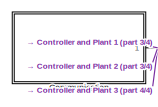
[diagram: root canvas - part 1/4, top center region]
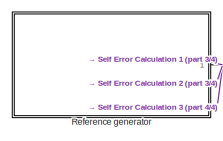
[diagram: root canvas - part 2/4, top left region]
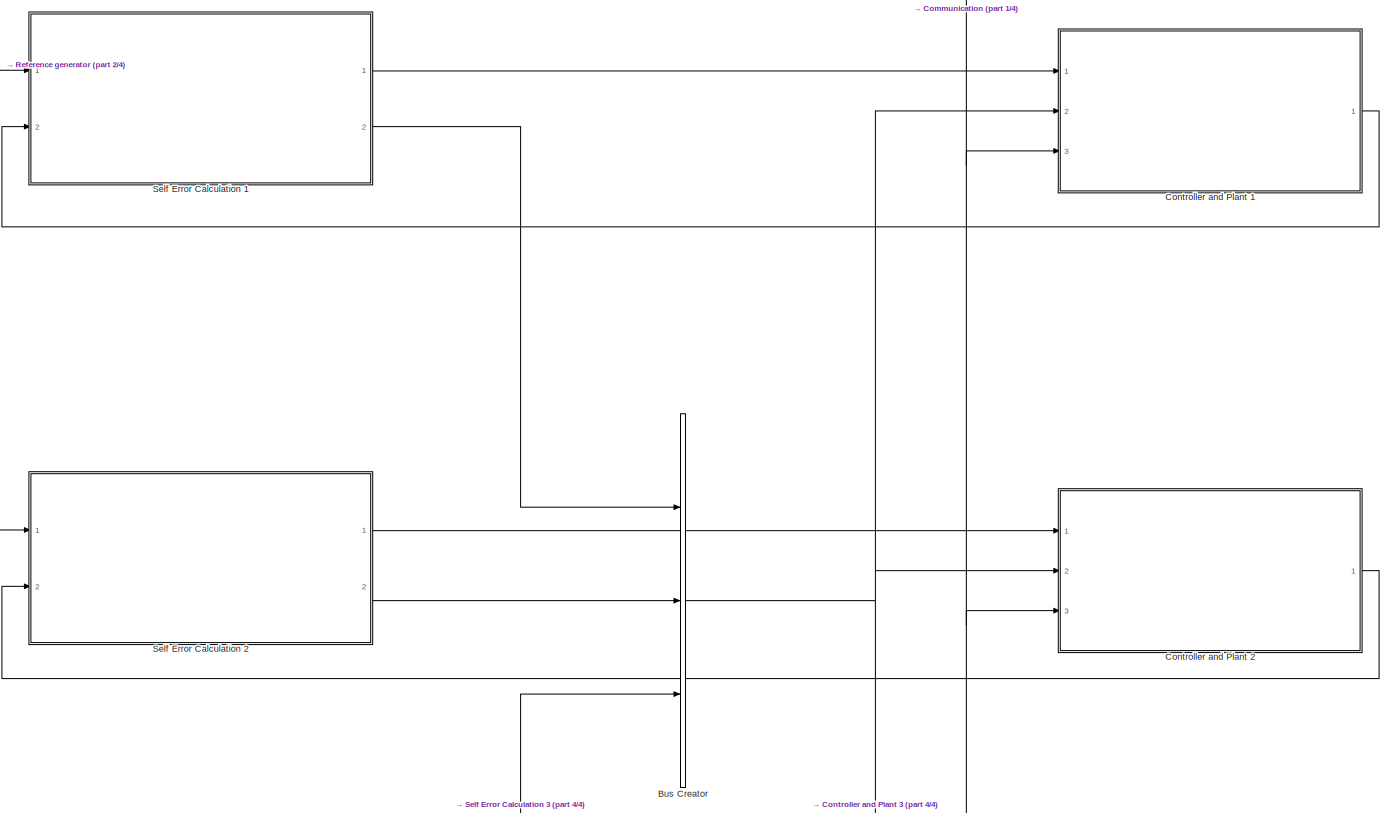
[diagram: root canvas - part 3/4, central region]
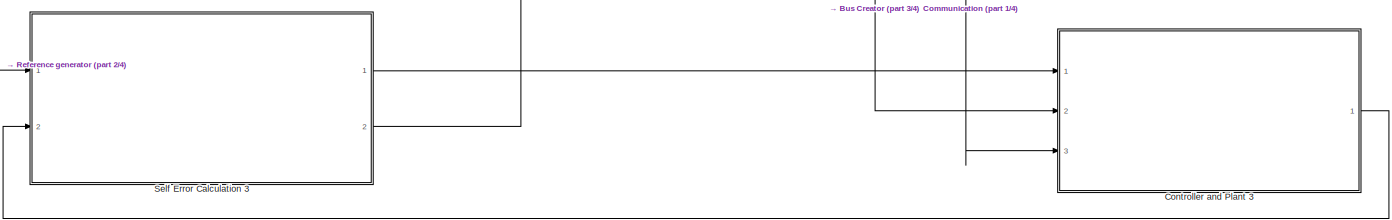
[diagram: root canvas - part 4/4, bottom center region]
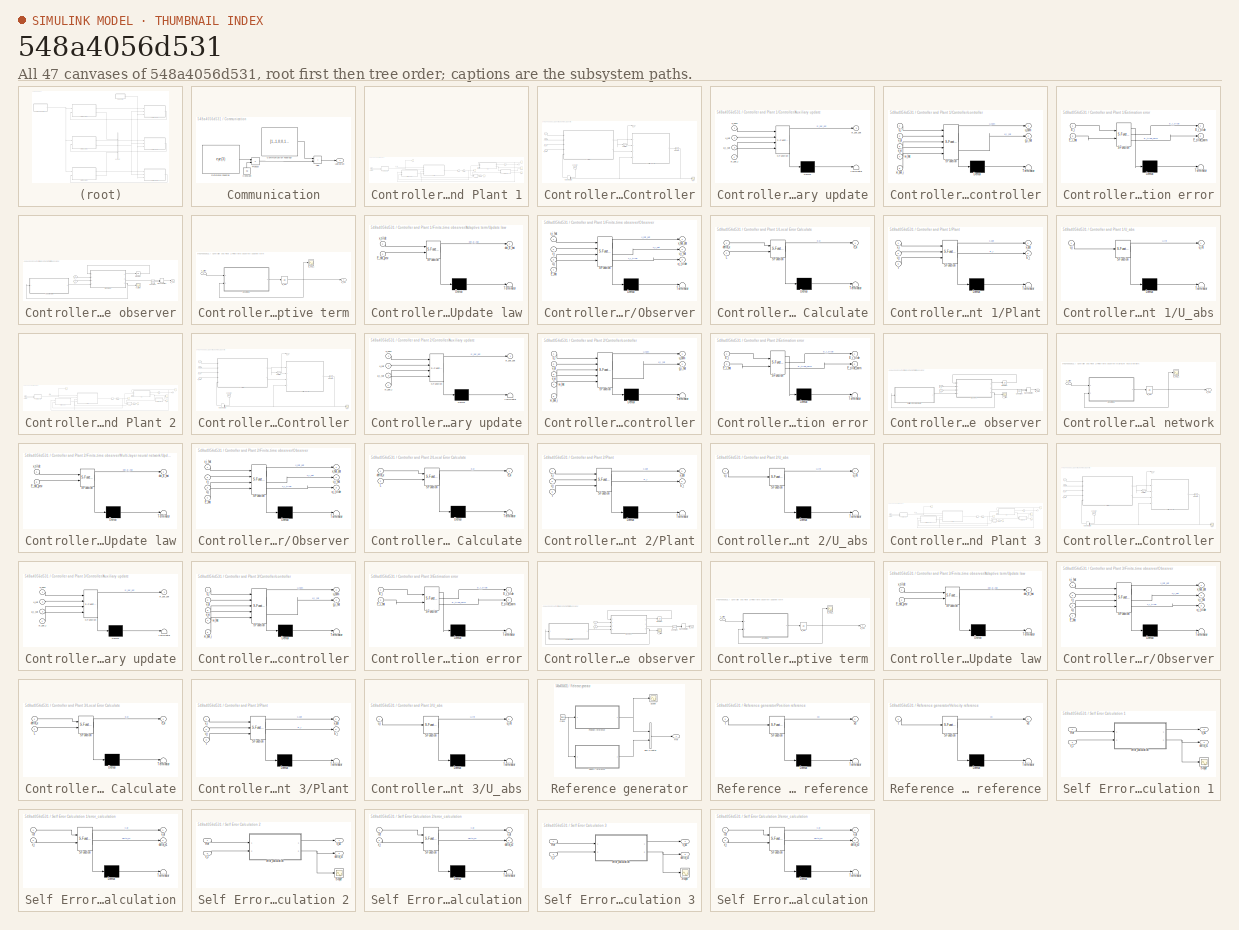
[diagram: thumbnail index - all 47 canvases of the model, root first then tree order]
MODEL slx_548a4056d531
KIND model
CONFIG AbsTol = auto
CONFIG EnableMultiTasking = off
CONFIG FixedStep = 0.02
CONFIG MaxStep = auto
CONFIG MinStep = auto
CONFIG RelTol = 1e-3
CONFIG SampleTimeConstraint = Unconstrained
CONFIG SolverName = ode5
CONFIG StartTime = 0.0
CONFIG StopTime = 90.0
BLOCK [BusCreator] Bus Creator
  DisplayOption = bar
  InheritFromInputs = on
  Inputs = 3
  Ports = [3, 1]
BLOCK [SubSystem] Communication
  Ports = [0, 1]
  RequestExecContextInheritance = off
BLOCK [Sum] Communication/Add
  IconShape = rectangular
  Ports = [2, 1]
BLOCK [Constant] Communication/Communication Topology
  Value = [1,-1,0;0,1,-1;-1,0,1]
  VectorParams1D = off
BLOCK [Constant] Communication/Constant
  NameLocation = right
  Value = 0.8
  VectorParams1D = off
BLOCK [Outport] Communication/Laplacian
  VectorParamsAs1DForOutWhenUnconnected = off
BLOCK [Product] Communication/Product
  Ports = [2, 1]
BLOCK [Constant] Communication/Reference Feeding
  Value = eye(3)
  VectorParams1D = off
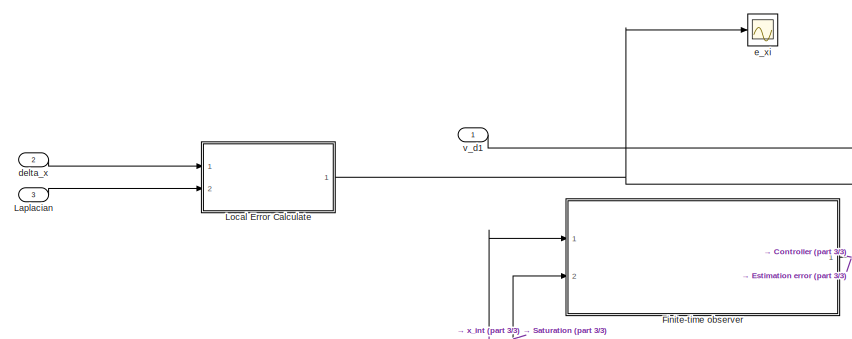
[diagram: Controller and Plant 1 - part 1/3, left side, full height]
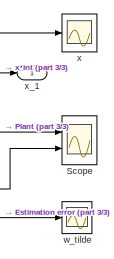
[diagram: Controller and Plant 1 - part 2/3, middle right region]
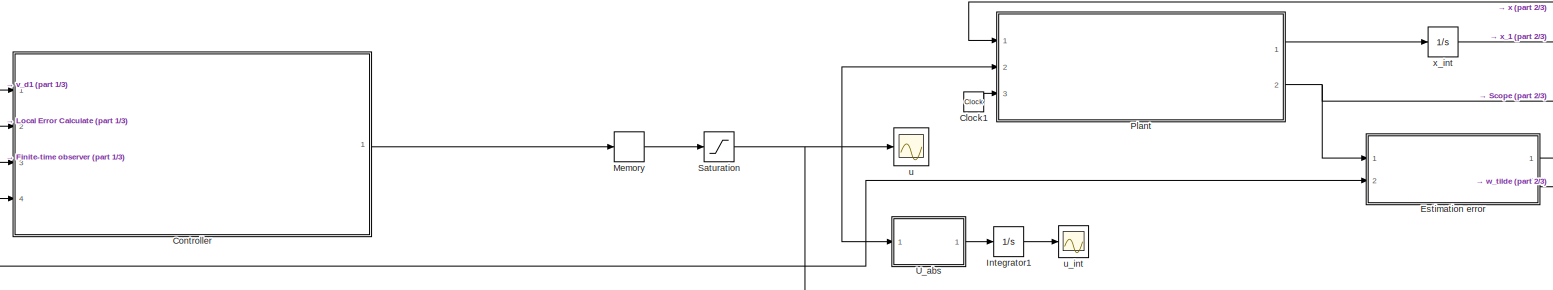
[diagram: Controller and Plant 1 - part 3/3, central region]
BLOCK [SubSystem] Controller and Plant 1
  Ports = [3, 1]
  RequestExecContextInheritance = off
BLOCK [Clock] Controller and Plant 1/Clock1
BLOCK [SubSystem] Controller and Plant 1/Controller
  Ports = [4, 1]
  RequestExecContextInheritance = off
BLOCK [SubSystem] Controller and Plant 1/Controller/Auxiliary update
  ErrorFcn = Stateflow.Translate.translate
  PermitHierarchicalResolution = ExplicitOnly
  Ports = [4, 1]
  RequestExecContextInheritance = off
  SFBlockType = MATLAB Function
  TreatAsAtomicUnit = on
BLOCK [Demux] Controller and Plant 1/Controller/Auxiliary update/ Demux 
  Outputs = 1
  Ports = [1, 1]
BLOCK [S-Function] Controller and Plant 1/Controller/Auxiliary update/ SFunction 
  EnableBusSupport = on
  FunctionName = sf_sfun
  PortCounts = [4 2]
  Ports = [4, 2]
  SFcnIsStateOwnerBlock = off
  SFunctionDeploymentMode = off
  Tag = Stateflow S-Function 1
BLOCK [Terminator] Controller and Plant 1/Controller/Auxiliary update/ Terminator 
BLOCK [Inport] Controller and Plant 1/Controller/Auxiliary update/g_i_hat
  Port = 3
BLOCK [Inport] Controller and Plant 1/Controller/Auxiliary update/u_nom
BLOCK [Inport] Controller and Plant 1/Controller/Auxiliary update/u_sat
  Port = 2
BLOCK [Outport] Controller and Plant 1/Controller/Auxiliary update/xi_bar_dot
BLOCK [Inport] Controller and Plant 1/Controller/Auxiliary update/xi_bar_i
  Port = 4
BLOCK [Constant] Controller and Plant 1/Controller/Constant
  NameLocation = left
  Value = [0;0;0]
BLOCK [Integrator] Controller and Plant 1/Controller/Integrator
  InitialCondition = [0;0;0]
  Ports = [1, 1]
BLOCK [ManualSwitch] Controller and Plant 1/Controller/Manual Switch
  CurrentSetting = 0
  NameLocation = top
BLOCK [Saturate] Controller and Plant 1/Controller/Saturation
  LowerLimit = -0.2
  UpperLimit = 0.2
BLOCK [SubSystem] Controller and Plant 1/Controller/controller
  ErrorFcn = Stateflow.Translate.translate
  PermitHierarchicalResolution = ExplicitOnly
  Ports = [5, 2]
  RequestExecContextInheritance = off
  SFBlockType = MATLAB Function
  TreatAsAtomicUnit = on
BLOCK [Demux] Controller and Plant 1/Controller/controller/ Demux 
  Outputs = 1
  Ports = [1, 1]
BLOCK [S-Function] Controller and Plant 1/Controller/controller/ SFunction 
  EnableBusSupport = on
  FunctionName = sf_sfun
  PortCounts = [5 3]
  Ports = [5, 3]
  SFcnIsStateOwnerBlock = off
  SFunctionDeploymentMode = off
  Tag = Stateflow S-Function 75
BLOCK [Terminator] Controller and Plant 1/Controller/controller/ Terminator 
BLOCK [Inport] Controller and Plant 1/Controller/controller/e_xi
  Port = 3
BLOCK [Outport] Controller and Plant 1/Controller/controller/g_i_hat
  Port = 2
BLOCK [Outport] Controller and Plant 1/Controller/controller/u_nom
BLOCK [Inport] Controller and Plant 1/Controller/controller/v_di
  Port = 2
BLOCK [Inport] Controller and Plant 1/Controller/controller/w_hat
  Port = 4
BLOCK [Inport] Controller and Plant 1/Controller/controller/x_i
BLOCK [Inport] Controller and Plant 1/Controller/controller/xi_bar_i
  Port = 5
BLOCK [Inport] Controller and Plant 1/Controller/e_xi
  Port = 2
BLOCK [Outport] Controller and Plant 1/Controller/u_i
BLOCK [Inport] Controller and Plant 1/Controller/v_di
BLOCK [Inport] Controller and Plant 1/Controller/w_hat
  Port = 3
BLOCK [Inport] Controller and Plant 1/Controller/x_i
  Port = 4
BLOCK [Scope] Controller and Plant 1/Controller/xi_i
  Floating = off
  NumInputPorts = 1
  Ports = [1]
  ScopeSpecificationString = Simulink.scopes.TimeScopeBlockCfg('CurrentConfiguration', extmgr.ConfigurationSet(extmgr.Configuration('Core','General UI',true),extmgr.Configuration('Core','Source UI',true),extmgr.Configuration('Sources','WiredSimulink',true,'DataLoggingVariableName','xi_1','DataLogging',true,'DataLoggingSaveFormat','Structure'),extmgr.Configuration('Visuals','Time Domain',true,'SerializedDisplays',{struct('MinY...<+1522ch>
BLOCK [SubSystem] Controller and Plant 1/Estimation error
  ErrorFcn = Stateflow.Translate.translate
  PermitHierarchicalResolution = ExplicitOnly
  Ports = [2, 2]
  RequestExecContextInheritance = off
  SFBlockType = MATLAB Function
  TreatAsAtomicUnit = on
BLOCK [Demux] Controller and Plant 1/Estimation error/ Demux 
  Outputs = 1
  Ports = [1, 1]
BLOCK [S-Function] Controller and Plant 1/Estimation error/ SFunction 
  EnableBusSupport = on
  FunctionName = sf_sfun
  PortCounts = [2 3]
  Ports = [2, 3]
  SFcnIsStateOwnerBlock = off
  SFunctionDeploymentMode = off
  Tag = Stateflow S-Function 7
BLOCK [Terminator] Controller and Plant 1/Estimation error/ Terminator 
BLOCK [Inport] Controller and Plant 1/Estimation error/E_i
BLOCK [Inport] Controller and Plant 1/Estimation error/E_i_hat
  Port = 2
BLOCK [Outport] Controller and Plant 1/Estimation error/E_i_tilde
BLOCK [Outport] Controller and Plant 1/Estimation error/E_tilde_norm
  Port = 2
BLOCK [SubSystem] Controller and Plant 1/Finite-time observer
  Ports = [2, 1]
  RequestExecContextInheritance = off
BLOCK [SubSystem] Controller and Plant 1/Finite-time observer/Adaptive term
  Ports = [1, 1]
  RequestExecContextInheritance = off
BLOCK [Integrator] Controller and Plant 1/Finite-time observer/Adaptive term/E_dot
  InitialCondition = [0;0;0]
  Ports = [1, 1]
BLOCK [Outport] Controller and Plant 1/Finite-time observer/Adaptive term/E_hat
BLOCK [Scope] Controller and Plant 1/Finite-time observer/Adaptive term/E_hat_1
  Floating = off
  NumInputPorts = 1
  Ports = [1]
  ScopeSpecificationString = Simulink.scopes.TimeScopeBlockCfg('CurrentConfiguration', extmgr.ConfigurationSet(extmgr.Configuration('Core','General UI',true),extmgr.Configuration('Core','Source UI',true),extmgr.Configuration('Sources','WiredSimulink',true,'DataLoggingVariableName','ScopeData2'),extmgr.Configuration('Visuals','Time Domain',true,'SerializedDisplays',{struct('MinYLimReal','-0.74764','MaxYLimReal','0.61798','YLab...<+1403ch>  <repeated x3 — deduplicated; at blocks: E_hat_1>
BLOCK [SubSystem] Controller and Plant 1/Finite-time observer/Adaptive term/Update law
  ErrorFcn = Stateflow.Translate.translate
  PermitHierarchicalResolution = ExplicitOnly
  Ports = [2, 1]
  RequestExecContextInheritance = off
  SFBlockType = MATLAB Function
  TreatAsAtomicUnit = on
BLOCK [Demux] Controller and Plant 1/Finite-time observer/Adaptive term/Update law/ Demux 
  Outputs = 1
  Ports = [1, 1]
BLOCK [S-Function] Controller and Plant 1/Finite-time observer/Adaptive term/Update law/ SFunction 
  EnableBusSupport = on
  FunctionName = sf_sfun
  PortCounts = [2 2]
  Ports = [2, 2]
  SFcnIsStateOwnerBlock = off
  SFunctionDeploymentMode = off
  Tag = Stateflow S-Function 6
BLOCK [Terminator] Controller and Plant 1/Finite-time observer/Adaptive term/Update law/ Terminator 
BLOCK [Inport] Controller and Plant 1/Finite-time observer/Adaptive term/Update law/E_hat_prev
  Port = 2
BLOCK [Outport] Controller and Plant 1/Finite-time observer/Adaptive term/Update law/dot_E_hat
BLOCK [Inport] Controller and Plant 1/Finite-time observer/Adaptive term/Update law/x_tilde
BLOCK [Inport] Controller and Plant 1/Finite-time observer/Adaptive term/x_i_tilde
BLOCK [Constant] Controller and Plant 1/Finite-time observer/Constant
  Value = [0;0;0]
  VectorParams1D = off
BLOCK [Outport] Controller and Plant 1/Finite-time observer/E_hat
BLOCK [Integrator] Controller and Plant 1/Finite-time observer/Integrator
  InitialCondition = InitialCondition
  Ports = [1, 1]
BLOCK [ManualSwitch] Controller and Plant 1/Finite-time observer/Manual Switch
BLOCK [SubSystem] Controller and Plant 1/Finite-time observer/Observer
  ErrorFcn = Stateflow.Translate.translate
  PermitHierarchicalResolution = ExplicitOnly
  Ports = [4, 3]
  RequestExecContextInheritance = off
  SFBlockType = MATLAB Function
  TreatAsAtomicUnit = on
BLOCK [Demux] Controller and Plant 1/Finite-time observer/Observer/ Demux 
  Outputs = 1
  Ports = [1, 1]
BLOCK [S-Function] Controller and Plant 1/Finite-time observer/Observer/ SFunction 
  EnableBusSupport = on
  FunctionName = sf_sfun
  PortCounts = [4 4]
  Ports = [4, 4]
  SFcnIsStateOwnerBlock = off
  SFunctionDeploymentMode = off
  Tag = Stateflow S-Function 69
BLOCK [Terminator] Controller and Plant 1/Finite-time observer/Observer/ Terminator 
BLOCK [Inport] Controller and Plant 1/Finite-time observer/Observer/E_hat
  Port = 4
BLOCK [Inport] Controller and Plant 1/Finite-time observer/Observer/u_i
  Port = 3
BLOCK [Outport] Controller and Plant 1/Finite-time observer/Observer/u_i_hat
  Port = 2
BLOCK [Outport] Controller and Plant 1/Finite-time observer/Observer/x_hat_dot
BLOCK [Inport] Controller and Plant 1/Finite-time observer/Observer/x_i
  Port = 2
BLOCK [Inport] Controller and Plant 1/Finite-time observer/Observer/x_i_hat
BLOCK [Outport] Controller and Plant 1/Finite-time observer/Observer/x_i_tilde
  Port = 3
BLOCK [Inport] Controller and Plant 1/Finite-time observer/u_i
  Port = 2
BLOCK [Inport] Controller and Plant 1/Finite-time observer/x_i
BLOCK [Scope] Controller and Plant 1/Finite-time observer/x_i_tilde
  Floating = off
  NumInputPorts = 1
  Ports = [1]
  ScopeSpecificationString = Simulink.scopes.TimeScopeBlockCfg('CurrentConfiguration', extmgr.ConfigurationSet(extmgr.Configuration('Core','General UI',true),extmgr.Configuration('Core','Source UI',true),extmgr.Configuration('Sources','WiredSimulink',true,'DataLoggingVariableName','ScopeData2'),extmgr.Configuration('Visuals','Time Domain',true,'SerializedDisplays',{struct('MinYLimReal','-0.03082','MaxYLimReal','0.03961','YLab...<+1469ch>
BLOCK [Integrator] Controller and Plant 1/Integrator1
  Ports = [1, 1]
BLOCK [Inport] Controller and Plant 1/Laplacian
  Port = 3
BLOCK [SubSystem] Controller and Plant 1/Local Error Calculate
  ErrorFcn = Stateflow.Translate.translate
  PermitHierarchicalResolution = ExplicitOnly
  Ports = [2, 1]
  RequestExecContextInheritance = off
  SFBlockType = MATLAB Function
  TreatAsAtomicUnit = on
BLOCK [Demux] Controller and Plant 1/Local Error Calculate/ Demux 
  Outputs = 1
  Ports = [1, 1]
BLOCK [S-Function] Controller and Plant 1/Local Error Calculate/ SFunction 
  EnableBusSupport = on
  FunctionName = sf_sfun
  PortCounts = [2 2]
  Ports = [2, 2]
  SFcnIsStateOwnerBlock = off
  SFunctionDeploymentMode = off
  Tag = Stateflow S-Function 13
BLOCK [Terminator] Controller and Plant 1/Local Error Calculate/ Terminator 
BLOCK [Inport] Controller and Plant 1/Local Error Calculate/L
  Port = 2
BLOCK [Inport] Controller and Plant 1/Local Error Calculate/delta_x
BLOCK [Outport] Controller and Plant 1/Local Error Calculate/e_xi
BLOCK [Memory] Controller and Plant 1/Memory
  InitialCondition = [0;0;0]
BLOCK [SubSystem] Controller and Plant 1/Plant
  ErrorFcn = Stateflow.Translate.translate
  PermitHierarchicalResolution = ExplicitOnly
  Ports = [3, 2]
  RequestExecContextInheritance = off
  SFBlockType = MATLAB Function
  TreatAsAtomicUnit = on
BLOCK [Demux] Controller and Plant 1/Plant/ Demux 
  Outputs = 1
  Ports = [1, 1]
BLOCK [S-Function] Controller and Plant 1/Plant/ SFunction 
  EnableBusSupport = on
  FunctionName = sf_sfun
  PortCounts = [3 3]
  Ports = [3, 3]
  SFcnIsStateOwnerBlock = off
  SFunctionDeploymentMode = off
  Tag = Stateflow S-Function 2
BLOCK [Terminator] Controller and Plant 1/Plant/ Terminator 
BLOCK [Outport] Controller and Plant 1/Plant/E_i
  Port = 2
BLOCK [Inport] Controller and Plant 1/Plant/t
  Port = 3
BLOCK [Inport] Controller and Plant 1/Plant/u_i
  Port = 2
BLOCK [Outport] Controller and Plant 1/Plant/x_dot
BLOCK [Inport] Controller and Plant 1/Plant/x_i
BLOCK [Saturate] Controller and Plant 1/Saturation
  LowerLimit = LowerLimit
  UpperLimit = UpperLimit
BLOCK [Scope] Controller and Plant 1/Scope
  Floating = off
  NumInputPorts = 2
  Ports = [2]
  ScopeSpecificationString = Simulink.scopes.TimeScopeBlockCfg('CurrentConfiguration', extmgr.ConfigurationSet(extmgr.Configuration('Core','General UI',true),extmgr.Configuration('Core','Source UI',true),extmgr.Configuration('Sources','WiredSimulink',true,'DataLoggingVariableName','ScopeData1'),extmgr.Configuration('Visuals','Time Domain',true,'SerializedDisplays',{struct('MinYLimReal','-0.10125','MaxYLimReal','0.11125','YLab...<+1645ch>
BLOCK [SubSystem] Controller and Plant 1/U_abs
  ErrorFcn = Stateflow.Translate.translate
  PermitHierarchicalResolution = ExplicitOnly
  Ports = [1, 1]
  RequestExecContextInheritance = off
  SFBlockType = MATLAB Function
  TreatAsAtomicUnit = on
BLOCK [Demux] Controller and Plant 1/U_abs/ Demux 
  Outputs = 1
  Ports = [1, 1]
BLOCK [S-Function] Controller and Plant 1/U_abs/ SFunction 
  EnableBusSupport = on
  FunctionName = sf_sfun
  PortCounts = [1 2]
  Ports = [1, 2]
  SFcnIsStateOwnerBlock = off
  SFunctionDeploymentMode = off
  Tag = Stateflow S-Function 104
BLOCK [Terminator] Controller and Plant 1/U_abs/ Terminator 
BLOCK [Inport] Controller and Plant 1/U_abs/u_i
BLOCK [Outport] Controller and Plant 1/U_abs/u_int
BLOCK [Inport] Controller and Plant 1/delta_x
  Port = 2
BLOCK [Scope] Controller and Plant 1/e_xi
  Floating = off
  NumInputPorts = 1
  Ports = [1]
  ScopeSpecificationString = Simulink.scopes.TimeScopeBlockCfg('CurrentConfiguration', extmgr.ConfigurationSet(extmgr.Configuration('Core','General UI',true),extmgr.Configuration('Core','Source UI',true),extmgr.Configuration('Sources','WiredSimulink',true,'DataLoggingVariableName','e_x1_3','DataLoggingSaveFormat','Array','DataLogging',true),extmgr.Configuration('Visuals','Time Domain',true,'SerializedDisplays',{struct('MinYLi...<+1524ch>
BLOCK [Scope] Controller and Plant 1/u
  Floating = off
  NumInputPorts = 1
  Ports = [1]
  ScopeSpecificationString = Simulink.scopes.TimeScopeBlockCfg('CurrentConfiguration', extmgr.ConfigurationSet(extmgr.Configuration('Core','General UI',true),extmgr.Configuration('Core','Source UI',true),extmgr.Configuration('Sources','WiredSimulink',true,'DataLoggingVariableName','u_1_3','DataLoggingSaveFormat','Array','DataLogging',true),extmgr.Configuration('Visuals','Time Domain',true,'SerializedDisplays',{struct('MinYLim...<+1507ch>
BLOCK [Scope] Controller and Plant 1/u_int
  Floating = off
  NumInputPorts = 1
  Ports = [1]
  ScopeSpecificationString = Simulink.scopes.TimeScopeBlockCfg('CurrentConfiguration', extmgr.ConfigurationSet(extmgr.Configuration('Core','General UI',true),extmgr.Configuration('Core','Source UI',true),extmgr.Configuration('Sources','WiredSimulink',true,'DataLoggingVariableName','u_int_1_3','DataLoggingSaveFormat','Array','DataLogging',true),extmgr.Configuration('Visuals','Time Domain',true,'SerializedDisplays',{struct('Min...<+1492ch>
BLOCK [Inport] Controller and Plant 1/v_d1
BLOCK [Scope] Controller and Plant 1/w_tilde
  Floating = off
  NumInputPorts = 1
  Ports = [1]
  ScopeSpecificationString = Simulink.scopes.TimeScopeBlockCfg('CurrentConfiguration', extmgr.ConfigurationSet(extmgr.Configuration('Core','General UI',true),extmgr.Configuration('Core','Source UI',true),extmgr.Configuration('Sources','WiredSimulink',true,'DataLoggingVariableName','E_tilde_norm_1','DataLogging',true,'DataLoggingSaveFormat','Array'),extmgr.Configuration('Visuals','Time Domain',true,'SerializedDisplays',{struct...<+1526ch>
BLOCK [Scope] Controller and Plant 1/x
  Floating = off
  NumInputPorts = 1
  Ports = [1]
  ScopeSpecificationString = Simulink.scopes.TimeScopeBlockCfg('CurrentConfiguration', extmgr.ConfigurationSet(extmgr.Configuration('Core','General UI',true),extmgr.Configuration('Core','Source UI',true),extmgr.Configuration('Sources','WiredSimulink',true,'DataLoggingVariableName','x_1_3','DataLogging',true,'DataLoggingSaveFormat','Array'),extmgr.Configuration('Visuals','Time Domain',true,'SerializedDisplays',{struct('MinYLim...<+1530ch>
BLOCK [Outport] Controller and Plant 1/x_1
BLOCK [Integrator] Controller and Plant 1/x_int
  InitialCondition = InitialCondition
  Ports = [1, 1]
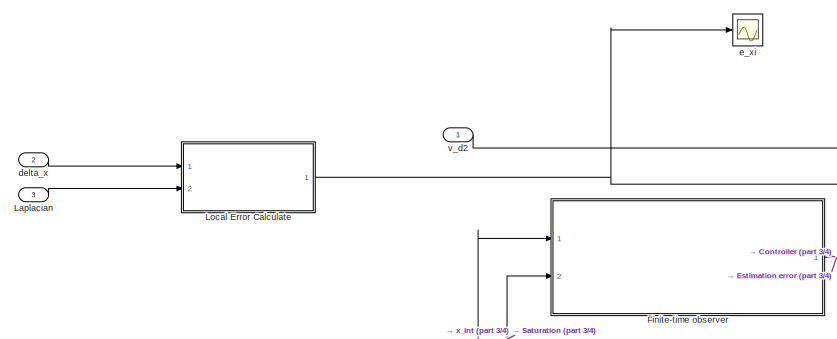
[diagram: Controller and Plant 2 - part 1/4, left side, full height]
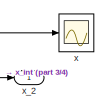
[diagram: Controller and Plant 2 - part 2/4, top right region]
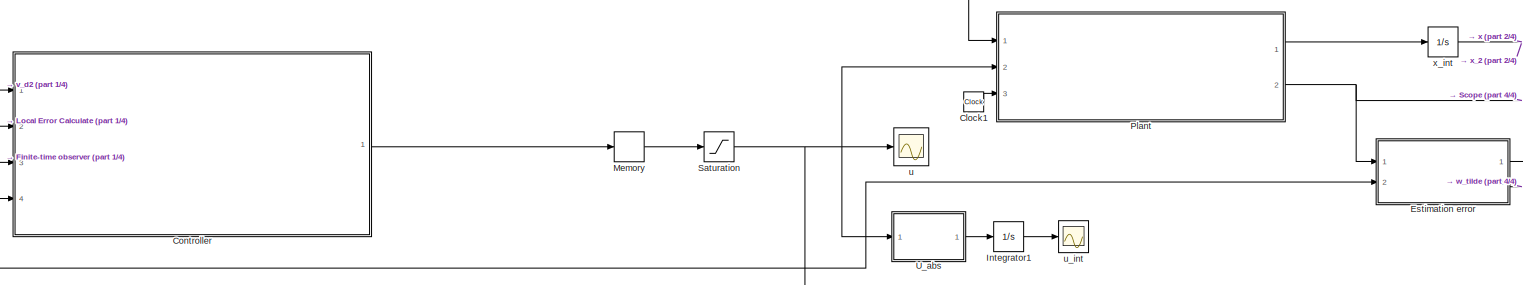
[diagram: Controller and Plant 2 - part 3/4, central region]
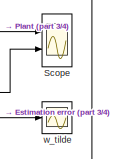
[diagram: Controller and Plant 2 - part 4/4, middle right region]
BLOCK [SubSystem] Controller and Plant 2
  Ports = [3, 1]
  RequestExecContextInheritance = off
BLOCK [Clock] Controller and Plant 2/Clock1
BLOCK [SubSystem] Controller and Plant 2/Controller
  Ports = [4, 1]
  RequestExecContextInheritance = off
BLOCK [SubSystem] Controller and Plant 2/Controller/Auxiliary update
  ErrorFcn = Stateflow.Translate.translate
  PermitHierarchicalResolution = ExplicitOnly
  Ports = [4, 1]
  RequestExecContextInheritance = off
  SFBlockType = MATLAB Function
  TreatAsAtomicUnit = on
BLOCK [Demux] Controller and Plant 2/Controller/Auxiliary update/ Demux 
  Outputs = 1
  Ports = [1, 1]
BLOCK [S-Function] Controller and Plant 2/Controller/Auxiliary update/ SFunction 
  EnableBusSupport = on
  FunctionName = sf_sfun
  PortCounts = [4 2]
  Ports = [4, 2]
  SFcnIsStateOwnerBlock = off
  SFunctionDeploymentMode = off
  Tag = Stateflow S-Function 4
BLOCK [Terminator] Controller and Plant 2/Controller/Auxiliary update/ Terminator 
BLOCK [Inport] Controller and Plant 2/Controller/Auxiliary update/g_i_hat
  Port = 3
BLOCK [Inport] Controller and Plant 2/Controller/Auxiliary update/u_nom
BLOCK [Inport] Controller and Plant 2/Controller/Auxiliary update/u_sat
  Port = 2
BLOCK [Outport] Controller and Plant 2/Controller/Auxiliary update/xi_bar_dot
BLOCK [Inport] Controller and Plant 2/Controller/Auxiliary update/xi_bar_i
  Port = 4
BLOCK [Constant] Controller and Plant 2/Controller/Constant
  NameLocation = left
  Value = [0;0;0]
BLOCK [Integrator] Controller and Plant 2/Controller/Integrator
  InitialCondition = [0;0;0]
  Ports = [1, 1]
BLOCK [ManualSwitch] Controller and Plant 2/Controller/Manual Switch
  CurrentSetting = 0
  NameLocation = top
BLOCK [Saturate] Controller and Plant 2/Controller/Saturation
  LowerLimit = -0.2
  UpperLimit = 0.2
BLOCK [SubSystem] Controller and Plant 2/Controller/controller
  ErrorFcn = Stateflow.Translate.translate
  PermitHierarchicalResolution = ExplicitOnly
  Ports = [5, 2]
  RequestExecContextInheritance = off
  SFBlockType = MATLAB Function
  TreatAsAtomicUnit = on
BLOCK [Demux] Controller and Plant 2/Controller/controller/ Demux 
  Outputs = 1
  Ports = [1, 1]
BLOCK [S-Function] Controller and Plant 2/Controller/controller/ SFunction 
  EnableBusSupport = on
  FunctionName = sf_sfun
  PortCounts = [5 3]
  Ports = [5, 3]
  SFcnIsStateOwnerBlock = off
  SFunctionDeploymentMode = off
  Tag = Stateflow S-Function 5
BLOCK [Terminator] Controller and Plant 2/Controller/controller/ Terminator 
BLOCK [Inport] Controller and Plant 2/Controller/controller/e_xi
  Port = 3
BLOCK [Outport] Controller and Plant 2/Controller/controller/g_i_hat
  Port = 2
BLOCK [Outport] Controller and Plant 2/Controller/controller/u_nom
BLOCK [Inport] Controller and Plant 2/Controller/controller/v_di
  Port = 2
BLOCK [Inport] Controller and Plant 2/Controller/controller/w_hat
  Port = 4
BLOCK [Inport] Controller and Plant 2/Controller/controller/x_i
BLOCK [Inport] Controller and Plant 2/Controller/controller/xi_bar_i
  Port = 5
BLOCK [Inport] Controller and Plant 2/Controller/e_xi
  Port = 2
BLOCK [Outport] Controller and Plant 2/Controller/u_i
BLOCK [Inport] Controller and Plant 2/Controller/v_di
BLOCK [Inport] Controller and Plant 2/Controller/w_hat
  Port = 3
BLOCK [Inport] Controller and Plant 2/Controller/x_i
  Port = 4
BLOCK [Scope] Controller and Plant 2/Controller/xi_i
  Floating = off
  NumInputPorts = 1
  Ports = [1]
  ScopeSpecificationString = Simulink.scopes.TimeScopeBlockCfg('CurrentConfiguration', extmgr.ConfigurationSet(extmgr.Configuration('Core','General UI',true),extmgr.Configuration('Core','Source UI',true),extmgr.Configuration('Sources','WiredSimulink',true,'DataLoggingVariableName','xi_2','DataLogging',true,'DataLoggingSaveFormat','Structure'),extmgr.Configuration('Visuals','Time Domain',true,'SerializedDisplays',{struct('MinY...<+1527ch>
BLOCK [SubSystem] Controller and Plant 2/Estimation error
  ErrorFcn = Stateflow.Translate.translate
  PermitHierarchicalResolution = ExplicitOnly
  Ports = [2, 2]
  RequestExecContextInheritance = off
  SFBlockType = MATLAB Function
  TreatAsAtomicUnit = on
BLOCK [Demux] Controller and Plant 2/Estimation error/ Demux 
  Outputs = 1
  Ports = [1, 1]
BLOCK [S-Function] Controller and Plant 2/Estimation error/ SFunction 
  EnableBusSupport = on
  FunctionName = sf_sfun
  PortCounts = [2 3]
  Ports = [2, 3]
  SFcnIsStateOwnerBlock = off
  SFunctionDeploymentMode = off
  Tag = Stateflow S-Function 8
BLOCK [Terminator] Controller and Plant 2/Estimation error/ Terminator 
BLOCK [Inport] Controller and Plant 2/Estimation error/E_i
BLOCK [Inport] Controller and Plant 2/Estimation error/E_i_hat
  Port = 2
BLOCK [Outport] Controller and Plant 2/Estimation error/E_i_tilde
BLOCK [Outport] Controller and Plant 2/Estimation error/E_tilde_norm
  Port = 2
BLOCK [SubSystem] Controller and Plant 2/Finite-time observer
  Ports = [2, 1]
  RequestExecContextInheritance = off
BLOCK [Constant] Controller and Plant 2/Finite-time observer/Constant
  Value = [0;0;0]
  VectorParams1D = off
BLOCK [Outport] Controller and Plant 2/Finite-time observer/E_hat
BLOCK [Integrator] Controller and Plant 2/Finite-time observer/Integrator
  InitialCondition = InitialCondition
  Ports = [1, 1]
BLOCK [ManualSwitch] Controller and Plant 2/Finite-time observer/Manual Switch
BLOCK [SubSystem] Controller and Plant 2/Finite-time observer/Multi-layer neural network
  Ports = [1, 1]
  RequestExecContextInheritance = off
BLOCK [Integrator] Controller and Plant 2/Finite-time observer/Multi-layer neural network/E_dot
  InitialCondition = [0;0;0]
  Ports = [1, 1]
BLOCK [Outport] Controller and Plant 2/Finite-time observer/Multi-layer neural network/E_hat
BLOCK [Scope] Controller and Plant 2/Finite-time observer/Multi-layer neural network/E_hat_1
  Floating = off
  NumInputPorts = 1
  Ports = [1]
BLOCK [SubSystem] Controller and Plant 2/Finite-time observer/Multi-layer neural network/Update law
  ErrorFcn = Stateflow.Translate.translate
  PermitHierarchicalResolution = ExplicitOnly
  Ports = [2, 1]
  RequestExecContextInheritance = off
  SFBlockType = MATLAB Function
  TreatAsAtomicUnit = on
BLOCK [Demux] Controller and Plant 2/Finite-time observer/Multi-layer neural network/Update law/ Demux 
  Outputs = 1
  Ports = [1, 1]
BLOCK [S-Function] Controller and Plant 2/Finite-time observer/Multi-layer neural network/Update law/ SFunction 
  EnableBusSupport = on
  FunctionName = sf_sfun
  PortCounts = [2 2]
  Ports = [2, 2]
  SFcnIsStateOwnerBlock = off
  SFunctionDeploymentMode = off
  Tag = Stateflow S-Function 10
BLOCK [Terminator] Controller and Plant 2/Finite-time observer/Multi-layer neural network/Update law/ Terminator 
BLOCK [Inport] Controller and Plant 2/Finite-time observer/Multi-layer neural network/Update law/E_hat_prev
  Port = 2
BLOCK [Outport] Controller and Plant 2/Finite-time observer/Multi-layer neural network/Update law/dot_E_hat
BLOCK [Inport] Controller and Plant 2/Finite-time observer/Multi-layer neural network/Update law/x_tilde
BLOCK [Inport] Controller and Plant 2/Finite-time observer/Multi-layer neural network/x_i_tilde
BLOCK [SubSystem] Controller and Plant 2/Finite-time observer/Observer
  ErrorFcn = Stateflow.Translate.translate
  PermitHierarchicalResolution = ExplicitOnly
  Ports = [4, 3]
  RequestExecContextInheritance = off
  SFBlockType = MATLAB Function
  TreatAsAtomicUnit = on
BLOCK [Demux] Controller and Plant 2/Finite-time observer/Observer/ Demux 
  Outputs = 1
  Ports = [1, 1]
BLOCK [S-Function] Controller and Plant 2/Finite-time observer/Observer/ SFunction 
  EnableBusSupport = on
  FunctionName = sf_sfun
  PortCounts = [4 4]
  Ports = [4, 4]
  SFcnIsStateOwnerBlock = off
  SFunctionDeploymentMode = off
  Tag = Stateflow S-Function 11
BLOCK [Terminator] Controller and Plant 2/Finite-time observer/Observer/ Terminator 
BLOCK [Inport] Controller and Plant 2/Finite-time observer/Observer/E_hat
  Port = 4
BLOCK [Inport] Controller and Plant 2/Finite-time observer/Observer/u_i
  Port = 3
BLOCK [Outport] Controller and Plant 2/Finite-time observer/Observer/u_i_hat
  Port = 2
BLOCK [Outport] Controller and Plant 2/Finite-time observer/Observer/x_hat_dot
BLOCK [Inport] Controller and Plant 2/Finite-time observer/Observer/x_i
  Port = 2
BLOCK [Inport] Controller and Plant 2/Finite-time observer/Observer/x_i_hat
BLOCK [Outport] Controller and Plant 2/Finite-time observer/Observer/x_i_tilde
  Port = 3
BLOCK [Inport] Controller and Plant 2/Finite-time observer/u_i
  Port = 2
BLOCK [Inport] Controller and Plant 2/Finite-time observer/x_i
BLOCK [Scope] Controller and Plant 2/Finite-time observer/x_i_tilde
  Floating = off
  NumInputPorts = 1
  Ports = [1]
  ScopeSpecificationString = Simulink.scopes.TimeScopeBlockCfg('CurrentConfiguration', extmgr.ConfigurationSet(extmgr.Configuration('Core','General UI',true),extmgr.Configuration('Core','Source UI',true),extmgr.Configuration('Sources','WiredSimulink',true,'DataLoggingVariableName','ScopeData2'),extmgr.Configuration('Visuals','Time Domain',true,'SerializedDisplays',{struct('MinYLimReal','-0.2625','MaxYLimReal','0.3625','YLabel...<+1463ch>
BLOCK [Integrator] Controller and Plant 2/Integrator1
  Ports = [1, 1]
BLOCK [Inport] Controller and Plant 2/Laplacian
  Port = 3
BLOCK [SubSystem] Controller and Plant 2/Local Error Calculate
  ErrorFcn = Stateflow.Translate.translate
  PermitHierarchicalResolution = ExplicitOnly
  Ports = [2, 1]
  RequestExecContextInheritance = off
  SFBlockType = MATLAB Function
  TreatAsAtomicUnit = on
BLOCK [Demux] Controller and Plant 2/Local Error Calculate/ Demux 
  Outputs = 1
  Ports = [1, 1]
BLOCK [S-Function] Controller and Plant 2/Local Error Calculate/ SFunction 
  EnableBusSupport = on
  FunctionName = sf_sfun
  PortCounts = [2 2]
  Ports = [2, 2]
  SFcnIsStateOwnerBlock = off
  SFunctionDeploymentMode = off
  Tag = Stateflow S-Function 14
BLOCK [Terminator] Controller and Plant 2/Local Error Calculate/ Terminator 
BLOCK [Inport] Controller and Plant 2/Local Error Calculate/L
  Port = 2
BLOCK [Inport] Controller and Plant 2/Local Error Calculate/delta_x
BLOCK [Outport] Controller and Plant 2/Local Error Calculate/e_xi
BLOCK [Memory] Controller and Plant 2/Memory
  InitialCondition = [0;0;0]
BLOCK [SubSystem] Controller and Plant 2/Plant
  ErrorFcn = Stateflow.Translate.translate
  PermitHierarchicalResolution = ExplicitOnly
  Ports = [3, 2]
  RequestExecContextInheritance = off
  SFBlockType = MATLAB Function
  TreatAsAtomicUnit = on
BLOCK [Demux] Controller and Plant 2/Plant/ Demux 
  Outputs = 1
  Ports = [1, 1]
BLOCK [S-Function] Controller and Plant 2/Plant/ SFunction 
  EnableBusSupport = on
  FunctionName = sf_sfun
  PortCounts = [3 3]
  Ports = [3, 3]
  SFcnIsStateOwnerBlock = off
  SFunctionDeploymentMode = off
  Tag = Stateflow S-Function 21
BLOCK [Terminator] Controller and Plant 2/Plant/ Terminator 
BLOCK [Outport] Controller and Plant 2/Plant/E_i
  Port = 2
BLOCK [Inport] Controller and Plant 2/Plant/t
  Port = 3
BLOCK [Inport] Controller and Plant 2/Plant/u_i
  Port = 2
BLOCK [Outport] Controller and Plant 2/Plant/x_dot
BLOCK [Inport] Controller and Plant 2/Plant/x_i
BLOCK [Saturate] Controller and Plant 2/Saturation
  LowerLimit = LowerLimit
  UpperLimit = UpperLimit
BLOCK [Scope] Controller and Plant 2/Scope
  Floating = off
  NumInputPorts = 2
  Ports = [2]
  ScopeSpecificationString = Simulink.scopes.TimeScopeBlockCfg('CurrentConfiguration', extmgr.ConfigurationSet(extmgr.Configuration('Core','General UI',true),extmgr.Configuration('Core','Source UI',true),extmgr.Configuration('Sources','WiredSimulink',true,'DataLoggingVariableName','ScopeData1'),extmgr.Configuration('Visuals','Time Domain',true,'SerializedDisplays',{struct('MinYLimReal','-0.1125','MaxYLimReal','0.1125','YLabel...<+1673ch>
BLOCK [SubSystem] Controller and Plant 2/U_abs
  ErrorFcn = Stateflow.Translate.translate
  PermitHierarchicalResolution = ExplicitOnly
  Ports = [1, 1]
  RequestExecContextInheritance = off
  SFBlockType = MATLAB Function
  TreatAsAtomicUnit = on
BLOCK [Demux] Controller and Plant 2/U_abs/ Demux 
  Outputs = 1
  Ports = [1, 1]
BLOCK [S-Function] Controller and Plant 2/U_abs/ SFunction 
  EnableBusSupport = on
  FunctionName = sf_sfun
  PortCounts = [1 2]
  Ports = [1, 2]
  SFcnIsStateOwnerBlock = off
  SFunctionDeploymentMode = off
  Tag = Stateflow S-Function 100
BLOCK [Terminator] Controller and Plant 2/U_abs/ Terminator 
BLOCK [Inport] Controller and Plant 2/U_abs/u_i
BLOCK [Outport] Controller and Plant 2/U_abs/u_int
BLOCK [Inport] Controller and Plant 2/delta_x
  Port = 2
BLOCK [Scope] Controller and Plant 2/e_xi
  Floating = off
  NumInputPorts = 1
  Ports = [1]
  ScopeSpecificationString = Simulink.scopes.TimeScopeBlockCfg('CurrentConfiguration', extmgr.ConfigurationSet(extmgr.Configuration('Core','General UI',true),extmgr.Configuration('Core','Source UI',true),extmgr.Configuration('Sources','WiredSimulink',true,'DataLoggingVariableName','e_x2_3','DataLogging',true,'DataLoggingSaveFormat','Array'),extmgr.Configuration('Visuals','Time Domain',true,'SerializedDisplays',{struct('MinYLi...<+1525ch>
BLOCK [Scope] Controller and Plant 2/u
  Floating = off
  NumInputPorts = 1
  Ports = [1]
  ScopeSpecificationString = Simulink.scopes.TimeScopeBlockCfg('CurrentConfiguration', extmgr.ConfigurationSet(extmgr.Configuration('Core','General UI',true),extmgr.Configuration('Core','Source UI',true),extmgr.Configuration('Sources','WiredSimulink',true,'DataLoggingVariableName','u_2_3','DataLogging',true,'DataLoggingSaveFormat','Array'),extmgr.Configuration('Visuals','Time Domain',true,'SerializedDisplays',{struct('MinYLim...<+1506ch>
BLOCK [Scope] Controller and Plant 2/u_int
  Floating = off
  NumInputPorts = 1
  Ports = [1]
  ScopeSpecificationString = Simulink.scopes.TimeScopeBlockCfg('CurrentConfiguration', extmgr.ConfigurationSet(extmgr.Configuration('Core','General UI',true),extmgr.Configuration('Core','Source UI',true),extmgr.Configuration('Sources','WiredSimulink',true,'DataLoggingVariableName','u_int_2_3','DataLogging',true,'DataLoggingSaveFormat','Array'),extmgr.Configuration('Visuals','Time Domain',true,'SerializedDisplays',{struct('Min...<+1424ch>
BLOCK [Inport] Controller and Plant 2/v_d2
BLOCK [Scope] Controller and Plant 2/w_tilde
  Floating = off
  NumInputPorts = 1
  Ports = [1]
  ScopeSpecificationString = Simulink.scopes.TimeScopeBlockCfg('CurrentConfiguration', extmgr.ConfigurationSet(extmgr.Configuration('Core','General UI',true),extmgr.Configuration('Core','Source UI',true),extmgr.Configuration('Sources','WiredSimulink',true,'DataLoggingVariableName','E_tilde_norm_2','DataLogging',true,'DataLoggingSaveFormat','Array'),extmgr.Configuration('Visuals','Time Domain',true,'SerializedDisplays',{struct...<+1533ch>
BLOCK [Scope] Controller and Plant 2/x
  Floating = off
  NumInputPorts = 1
  Ports = [1]
  ScopeSpecificationString = Simulink.scopes.TimeScopeBlockCfg('CurrentConfiguration', extmgr.ConfigurationSet(extmgr.Configuration('Core','General UI',true),extmgr.Configuration('Core','Source UI',true),extmgr.Configuration('Sources','WiredSimulink',true,'DataLoggingVariableName','x_2_3','DataLogging',true,'DataLoggingSaveFormat','Array'),extmgr.Configuration('Visuals','Time Domain',true,'SerializedDisplays',{struct('MinYLim...<+1530ch>
BLOCK [Outport] Controller and Plant 2/x_2
BLOCK [Integrator] Controller and Plant 2/x_int
  InitialCondition = InitialCondition
  Ports = [1, 1]
BLOCK [SubSystem] Controller and Plant 3
  Ports = [3, 1]
  RequestExecContextInheritance = off
BLOCK [Clock] Controller and Plant 3/Clock1
BLOCK [SubSystem] Controller and Plant 3/Controller
  Ports = [4, 1]
  RequestExecContextInheritance = off
BLOCK [SubSystem] Controller and Plant 3/Controller/Auxiliary update
  ErrorFcn = Stateflow.Translate.translate
  PermitHierarchicalResolution = ExplicitOnly
  Ports = [4, 1]
  RequestExecContextInheritance = off
  SFBlockType = MATLAB Function
  TreatAsAtomicUnit = on
BLOCK [Demux] Controller and Plant 3/Controller/Auxiliary update/ Demux 
  Outputs = 1
  Ports = [1, 1]
BLOCK [S-Function] Controller and Plant 3/Controller/Auxiliary update/ SFunction 
  EnableBusSupport = on
  FunctionName = sf_sfun
  PortCounts = [4 2]
  Ports = [4, 2]
  SFcnIsStateOwnerBlock = off
  SFunctionDeploymentMode = off
  Tag = Stateflow S-Function 12
BLOCK [Terminator] Controller and Plant 3/Controller/Auxiliary update/ Terminator 
BLOCK [Inport] Controller and Plant 3/Controller/Auxiliary update/g_i_hat
  Port = 3
BLOCK [Inport] Controller and Plant 3/Controller/Auxiliary update/u_nom
BLOCK [Inport] Controller and Plant 3/Controller/Auxiliary update/u_sat
  Port = 2
BLOCK [Outport] Controller and Plant 3/Controller/Auxiliary update/xi_bar_dot
BLOCK [Inport] Controller and Plant 3/Controller/Auxiliary update/xi_bar_i
  Port = 4
BLOCK [Constant] Controller and Plant 3/Controller/Constant
  NameLocation = left
  Value = [0;0;0]
BLOCK [Integrator] Controller and Plant 3/Controller/Integrator
  InitialCondition = [0;0;0]
  Ports = [1, 1]
BLOCK [ManualSwitch] Controller and Plant 3/Controller/Manual Switch
  CurrentSetting = 0
  NameLocation = top
BLOCK [Saturate] Controller and Plant 3/Controller/Saturation
  LowerLimit = -0.2
  UpperLimit = 0.2
BLOCK [SubSystem] Controller and Plant 3/Controller/controller
  ErrorFcn = Stateflow.Translate.translate
  PermitHierarchicalResolution = ExplicitOnly
  Ports = [5, 2]
  RequestExecContextInheritance = off
  SFBlockType = MATLAB Function
  TreatAsAtomicUnit = on
BLOCK [Demux] Controller and Plant 3/Controller/controller/ Demux 
  Outputs = 1
  Ports = [1, 1]
BLOCK [S-Function] Controller and Plant 3/Controller/controller/ SFunction 
  EnableBusSupport = on
  FunctionName = sf_sfun
  PortCounts = [5 3]
  Ports = [5, 3]
  SFcnIsStateOwnerBlock = off
  SFunctionDeploymentMode = off
  Tag = Stateflow S-Function 17
BLOCK [Terminator] Controller and Plant 3/Controller/controller/ Terminator 
BLOCK [Inport] Controller and Plant 3/Controller/controller/e_xi
  Port = 3
BLOCK [Outport] Controller and Plant 3/Controller/controller/g_i_hat
  Port = 2
BLOCK [Outport] Controller and Plant 3/Controller/controller/u_nom
BLOCK [Inport] Controller and Plant 3/Controller/controller/v_di
  Port = 2
BLOCK [Inport] Controller and Plant 3/Controller/controller/w_hat
  Port = 4
BLOCK [Inport] Controller and Plant 3/Controller/controller/x_i
BLOCK [Inport] Controller and Plant 3/Controller/controller/xi_bar_i
  Port = 5
BLOCK [Inport] Controller and Plant 3/Controller/e_xi
  Port = 2
BLOCK [Outport] Controller and Plant 3/Controller/u_i
BLOCK [Inport] Controller and Plant 3/Controller/v_di
BLOCK [Inport] Controller and Plant 3/Controller/w_hat
  Port = 3
BLOCK [Inport] Controller and Plant 3/Controller/x_i
  Port = 4
BLOCK [Scope] Controller and Plant 3/Controller/xi_i
  Floating = off
  NumInputPorts = 1
  Ports = [1]
  ScopeSpecificationString = Simulink.scopes.TimeScopeBlockCfg('CurrentConfiguration', extmgr.ConfigurationSet(extmgr.Configuration('Core','General UI',true),extmgr.Configuration('Core','Source UI',true),extmgr.Configuration('Sources','WiredSimulink',true,'DataLoggingVariableName','xi_3','DataLogging',true,'DataLoggingSaveFormat','Structure'),extmgr.Configuration('Visuals','Time Domain',true,'SerializedDisplays',{struct('MinY...<+1527ch>
BLOCK [SubSystem] Controller and Plant 3/Estimation error
  ErrorFcn = Stateflow.Translate.translate
  PermitHierarchicalResolution = ExplicitOnly
  Ports = [2, 2]
  RequestExecContextInheritance = off
  SFBlockType = MATLAB Function
  TreatAsAtomicUnit = on
BLOCK [Demux] Controller and Plant 3/Estimation error/ Demux 
  Outputs = 1
  Ports = [1, 1]
BLOCK [S-Function] Controller and Plant 3/Estimation error/ SFunction 
  EnableBusSupport = on
  FunctionName = sf_sfun
  PortCounts = [2 3]
  Ports = [2, 3]
  SFcnIsStateOwnerBlock = off
  SFunctionDeploymentMode = off
  Tag = Stateflow S-Function 9
BLOCK [Terminator] Controller and Plant 3/Estimation error/ Terminator 
BLOCK [Inport] Controller and Plant 3/Estimation error/E_i
BLOCK [Inport] Controller and Plant 3/Estimation error/E_i_hat
  Port = 2
BLOCK [Outport] Controller and Plant 3/Estimation error/E_i_tilde
BLOCK [Outport] Controller and Plant 3/Estimation error/E_tilde_norm
  Port = 2
BLOCK [SubSystem] Controller and Plant 3/Finite-time observer
  Ports = [2, 1]
  RequestExecContextInheritance = off
BLOCK [SubSystem] Controller and Plant 3/Finite-time observer/Adaptive term
  Ports = [1, 1]
  RequestExecContextInheritance = off
BLOCK [Integrator] Controller and Plant 3/Finite-time observer/Adaptive term/E_dot
  InitialCondition = [0;0;0]
  Ports = [1, 1]
BLOCK [Outport] Controller and Plant 3/Finite-time observer/Adaptive term/E_hat
BLOCK [Scope] Controller and Plant 3/Finite-time observer/Adaptive term/E_hat_1
  Floating = off
  NumInputPorts = 1
  Ports = [1]
BLOCK [SubSystem] Controller and Plant 3/Finite-time observer/Adaptive term/Update law
  ErrorFcn = Stateflow.Translate.translate
  PermitHierarchicalResolution = ExplicitOnly
  Ports = [2, 1]
  RequestExecContextInheritance = off
  SFBlockType = MATLAB Function
  TreatAsAtomicUnit = on
BLOCK [Demux] Controller and Plant 3/Finite-time observer/Adaptive term/Update law/ Demux 
  Outputs = 1
  Ports = [1, 1]
BLOCK [S-Function] Controller and Plant 3/Finite-time observer/Adaptive term/Update law/ SFunction 
  EnableBusSupport = on
  FunctionName = sf_sfun
  PortCounts = [2 2]
  Ports = [2, 2]
  SFcnIsStateOwnerBlock = off
  SFunctionDeploymentMode = off
  Tag = Stateflow S-Function 15
BLOCK [Terminator] Controller and Plant 3/Finite-time observer/Adaptive term/Update law/ Terminator 
BLOCK [Inport] Controller and Plant 3/Finite-time observer/Adaptive term/Update law/E_hat_prev
  Port = 2
BLOCK [Outport] Controller and Plant 3/Finite-time observer/Adaptive term/Update law/dot_E_hat
BLOCK [Inport] Controller and Plant 3/Finite-time observer/Adaptive term/Update law/x_tilde
BLOCK [Inport] Controller and Plant 3/Finite-time observer/Adaptive term/x_i_tilde
BLOCK [Constant] Controller and Plant 3/Finite-time observer/Constant
  Value = [0;0;0]
  VectorParams1D = off
BLOCK [Outport] Controller and Plant 3/Finite-time observer/E_hat
BLOCK [Integrator] Controller and Plant 3/Finite-time observer/Integrator
  InitialCondition = InitialCondition
  Ports = [1, 1]
BLOCK [ManualSwitch] Controller and Plant 3/Finite-time observer/Manual Switch
BLOCK [SubSystem] Controller and Plant 3/Finite-time observer/Observer
  ErrorFcn = Stateflow.Translate.translate
  PermitHierarchicalResolution = ExplicitOnly
  Ports = [4, 3]
  RequestExecContextInheritance = off
  SFBlockType = MATLAB Function
  TreatAsAtomicUnit = on
BLOCK [Demux] Controller and Plant 3/Finite-time observer/Observer/ Demux 
  Outputs = 1
  Ports = [1, 1]
BLOCK [S-Function] Controller and Plant 3/Finite-time observer/Observer/ SFunction 
  EnableBusSupport = on
  FunctionName = sf_sfun
  PortCounts = [4 4]
  Ports = [4, 4]
  SFcnIsStateOwnerBlock = off
  SFunctionDeploymentMode = off
  Tag = Stateflow S-Function 16
BLOCK [Terminator] Controller and Plant 3/Finite-time observer/Observer/ Terminator 
BLOCK [Inport] Controller and Plant 3/Finite-time observer/Observer/E_hat
  Port = 4
BLOCK [Inport] Controller and Plant 3/Finite-time observer/Observer/u_i
  Port = 3
BLOCK [Outport] Controller and Plant 3/Finite-time observer/Observer/u_i_hat
  Port = 2
BLOCK [Outport] Controller and Plant 3/Finite-time observer/Observer/x_hat_dot
BLOCK [Inport] Controller and Plant 3/Finite-time observer/Observer/x_i
  Port = 2
BLOCK [Inport] Controller and Plant 3/Finite-time observer/Observer/x_i_hat
BLOCK [Outport] Controller and Plant 3/Finite-time observer/Observer/x_i_tilde
  Port = 3
BLOCK [Inport] Controller and Plant 3/Finite-time observer/u_i
  Port = 2
BLOCK [Inport] Controller and Plant 3/Finite-time observer/x_i
BLOCK [Scope] Controller and Plant 3/Finite-time observer/x_i_tilde
  Floating = off
  NumInputPorts = 1
  Ports = [1]
  ScopeSpecificationString = Simulink.scopes.TimeScopeBlockCfg('CurrentConfiguration', extmgr.ConfigurationSet(extmgr.Configuration('Core','General UI',true),extmgr.Configuration('Core','Source UI',true),extmgr.Configuration('Sources','WiredSimulink',true,'DataLoggingVariableName','ScopeData2'),extmgr.Configuration('Visuals','Time Domain',true,'SerializedDisplays',{struct('MinYLimReal','-0.2625','MaxYLimReal','0.3625','YLabel...<+1463ch>
BLOCK [Integrator] Controller and Plant 3/Integrator1
  Ports = [1, 1]
BLOCK [Inport] Controller and Plant 3/Laplacian
  Port = 3
BLOCK [SubSystem] Controller and Plant 3/Local Error Calculate
  ErrorFcn = Stateflow.Translate.translate
  PermitHierarchicalResolution = ExplicitOnly
  Ports = [2, 1]
  RequestExecContextInheritance = off
  SFBlockType = MATLAB Function
  TreatAsAtomicUnit = on
BLOCK [Demux] Controller and Plant 3/Local Error Calculate/ Demux 
  Outputs = 1
  Ports = [1, 1]
BLOCK [S-Function] Controller and Plant 3/Local Error Calculate/ SFunction 
  EnableBusSupport = on
  FunctionName = sf_sfun
  PortCounts = [2 2]
  Ports = [2, 2]
  SFcnIsStateOwnerBlock = off
  SFunctionDeploymentMode = off
  Tag = Stateflow S-Function 25
BLOCK [Terminator] Controller and Plant 3/Local Error Calculate/ Terminator 
BLOCK [Inport] Controller and Plant 3/Local Error Calculate/L
  Port = 2
BLOCK [Inport] Controller and Plant 3/Local Error Calculate/delta_x
BLOCK [Outport] Controller and Plant 3/Local Error Calculate/e_xi
BLOCK [Memory] Controller and Plant 3/Memory
  InitialCondition = [0;0;0]
BLOCK [SubSystem] Controller and Plant 3/Plant
  ErrorFcn = Stateflow.Translate.translate
  PermitHierarchicalResolution = ExplicitOnly
  Ports = [3, 2]
  RequestExecContextInheritance = off
  SFBlockType = MATLAB Function
  TreatAsAtomicUnit = on
BLOCK [Demux] Controller and Plant 3/Plant/ Demux 
  Outputs = 1
  Ports = [1, 1]
BLOCK [S-Function] Controller and Plant 3/Plant/ SFunction 
  EnableBusSupport = on
  FunctionName = sf_sfun
  PortCounts = [3 3]
  Ports = [3, 3]
  SFcnIsStateOwnerBlock = off
  SFunctionDeploymentMode = off
  Tag = Stateflow S-Function 33
BLOCK [Terminator] Controller and Plant 3/Plant/ Terminator 
BLOCK [Outport] Controller and Plant 3/Plant/E_i
  Port = 2
BLOCK [Inport] Controller and Plant 3/Plant/t
  Port = 3
BLOCK [Inport] Controller and Plant 3/Plant/u_i
  Port = 2
BLOCK [Outport] Controller and Plant 3/Plant/x_dot
BLOCK [Inport] Controller and Plant 3/Plant/x_i
BLOCK [Saturate] Controller and Plant 3/Saturation
  LowerLimit = LowerLimit
  UpperLimit = UpperLimit
BLOCK [Scope] Controller and Plant 3/Scope
  Floating = off
  NumInputPorts = 2
  Ports = [2]
  ScopeSpecificationString = Simulink.scopes.TimeScopeBlockCfg('CurrentConfiguration', extmgr.ConfigurationSet(extmgr.Configuration('Core','General UI',true),extmgr.Configuration('Core','Source UI',true),extmgr.Configuration('Sources','WiredSimulink',true,'DataLoggingVariableName','ScopeData1'),extmgr.Configuration('Visuals','Time Domain',true,'SerializedDisplays',{struct('MinYLimReal','-0.11438','MaxYLimReal','0.12945','YLab...<+1645ch>
BLOCK [SubSystem] Controller and Plant 3/U_abs
  ErrorFcn = Stateflow.Translate.translate
  PermitHierarchicalResolution = ExplicitOnly
  Ports = [1, 1]
  RequestExecContextInheritance = off
  SFBlockType = MATLAB Function
  TreatAsAtomicUnit = on
BLOCK [Demux] Controller and Plant 3/U_abs/ Demux 
  Outputs = 1
  Ports = [1, 1]
BLOCK [S-Function] Controller and Plant 3/U_abs/ SFunction 
  EnableBusSupport = on
  FunctionName = sf_sfun
  PortCounts = [1 2]
  Ports = [1, 2]
  SFcnIsStateOwnerBlock = off
  SFunctionDeploymentMode = off
  Tag = Stateflow S-Function 99
BLOCK [Terminator] Controller and Plant 3/U_abs/ Terminator 
BLOCK [Inport] Controller and Plant 3/U_abs/u_i
BLOCK [Outport] Controller and Plant 3/U_abs/u_int
BLOCK [Inport] Controller and Plant 3/delta_x
  Port = 2
BLOCK [Scope] Controller and Plant 3/e_xi
  Floating = off
  NumInputPorts = 1
  Ports = [1]
  ScopeSpecificationString = Simulink.scopes.TimeScopeBlockCfg('CurrentConfiguration', extmgr.ConfigurationSet(extmgr.Configuration('Core','General UI',true),extmgr.Configuration('Core','Source UI',true),extmgr.Configuration('Sources','WiredSimulink',true,'DataLoggingVariableName','e_x3_3','DataLogging',true,'DataLoggingSaveFormat','Array'),extmgr.Configuration('Visuals','Time Domain',true,'SerializedDisplays',{struct('MinYLi...<+1525ch>
BLOCK [Scope] Controller and Plant 3/u
  Floating = off
  NumInputPorts = 1
  Ports = [1]
  ScopeSpecificationString = Simulink.scopes.TimeScopeBlockCfg('CurrentConfiguration', extmgr.ConfigurationSet(extmgr.Configuration('Core','General UI',true),extmgr.Configuration('Core','Source UI',true),extmgr.Configuration('Sources','WiredSimulink',true,'DataLoggingVariableName','u_3_3','DataLogging',true,'DataLoggingSaveFormat','Array'),extmgr.Configuration('Visuals','Time Domain',true,'SerializedDisplays',{struct('MinYLim...<+1524ch>
BLOCK [Scope] Controller and Plant 3/u_int
  Floating = off
  NumInputPorts = 1
  Ports = [1]
  ScopeSpecificationString = Simulink.scopes.TimeScopeBlockCfg('CurrentConfiguration', extmgr.ConfigurationSet(extmgr.Configuration('Core','General UI',true),extmgr.Configuration('Core','Source UI',true),extmgr.Configuration('Sources','WiredSimulink',true,'DataLoggingVariableName','u_int_3_3','DataLogging',true,'DataLoggingSaveFormat','Array'),extmgr.Configuration('Visuals','Time Domain',true,'SerializedDisplays',{struct('Min...<+1424ch>
BLOCK [Inport] Controller and Plant 3/v_d3
BLOCK [Scope] Controller and Plant 3/w_tilde
  Floating = off
  NumInputPorts = 1
  Ports = [1]
  ScopeSpecificationString = Simulink.scopes.TimeScopeBlockCfg('CurrentConfiguration', extmgr.ConfigurationSet(extmgr.Configuration('Core','General UI',true),extmgr.Configuration('Core','Source UI',true),extmgr.Configuration('Sources','WiredSimulink',true,'DataLoggingVariableName','E_tilde_norm_3','DataLogging',true,'DataLoggingSaveFormat','Array'),extmgr.Configuration('Visuals','Time Domain',true,'SerializedDisplays',{struct...<+1529ch>
BLOCK [Scope] Controller and Plant 3/x
  Floating = off
  NumInputPorts = 1
  Ports = [1]
  ScopeSpecificationString = Simulink.scopes.TimeScopeBlockCfg('CurrentConfiguration', extmgr.ConfigurationSet(extmgr.Configuration('Core','General UI',true),extmgr.Configuration('Core','Source UI',true),extmgr.Configuration('Sources','WiredSimulink',true,'DataLoggingVariableName','x_3_3','DataLogging',true,'DataLoggingSaveFormat','Array'),extmgr.Configuration('Visuals','Time Domain',true,'SerializedDisplays',{struct('MinYLim...<+1526ch>
BLOCK [Outport] Controller and Plant 3/x_3
BLOCK [Integrator] Controller and Plant 3/x_int
  InitialCondition = InitialCondition
  Ports = [1, 1]
BLOCK [SubSystem] Reference generator
  Ports = [0, 1]
  RequestExecContextInheritance = off
BLOCK [BusCreator] Reference generator/Bus Creator
  DisplayOption = bar
  InheritFromInputs = on
  Inputs = 2
  Ports = [2, 1]
BLOCK [Clock] Reference generator/Clock
BLOCK [SubSystem] Reference generator/Position reference
  ErrorFcn = Stateflow.Translate.translate
  PermitHierarchicalResolution = ExplicitOnly
  Ports = [1, 1]
  RequestExecContextInheritance = off
  SFBlockType = MATLAB Function
  TreatAsAtomicUnit = on
BLOCK [Demux] Reference generator/Position reference/ Demux 
  Outputs = 1
  Ports = [1, 1]
BLOCK [S-Function] Reference generator/Position reference/ SFunction 
  EnableBusSupport = on
  FunctionName = sf_sfun
  PortCounts = [1 2]
  Ports = [1, 2]
  SFcnIsStateOwnerBlock = off
  SFunctionDeploymentMode = off
  Tag = Stateflow S-Function 105
BLOCK [Terminator] Reference generator/Position reference/ Terminator 
BLOCK [Inport] Reference generator/Position reference/t
BLOCK [Outport] Reference generator/Position reference/xd
BLOCK [Outport] Reference generator/Ref
BLOCK [Scope] Reference generator/Scope
  Floating = off
  NumInputPorts = 1
  Ports = [1]
  ScopeSpecificationString = Simulink.scopes.TimeScopeBlockCfg('CurrentConfiguration', extmgr.ConfigurationSet(extmgr.Configuration('Core','General UI',true),extmgr.Configuration('Core','Source UI',true),extmgr.Configuration('Sources','WiredSimulink',true,'DataLoggingVariableName','ref_x1','DataLogging',true,'DataLoggingSaveFormat','Array'),extmgr.Configuration('Visuals','Time Domain',true,'SerializedDisplays',{struct('MinYLi...<+1665ch>
BLOCK [SubSystem] Reference generator/Velocity reference
  ErrorFcn = Stateflow.Translate.translate
  PermitHierarchicalResolution = ExplicitOnly
  Ports = [1, 1]
  RequestExecContextInheritance = off
  SFBlockType = MATLAB Function
  TreatAsAtomicUnit = on
BLOCK [Demux] Reference generator/Velocity reference/ Demux 
  Outputs = 1
  Ports = [1, 1]
BLOCK [S-Function] Reference generator/Velocity reference/ SFunction 
  EnableBusSupport = on
  FunctionName = sf_sfun
  PortCounts = [1 2]
  Ports = [1, 2]
  SFcnIsStateOwnerBlock = off
  SFunctionDeploymentMode = off
  Tag = Stateflow S-Function 106
BLOCK [Terminator] Reference generator/Velocity reference/ Terminator 
BLOCK [Inport] Reference generator/Velocity reference/t
BLOCK [Outport] Reference generator/Velocity reference/vd
BLOCK [SubSystem] Self Error Calculation 1
  Ports = [2, 2]
  RequestExecContextInheritance = off
BLOCK [Inport] Self Error Calculation 1/Ref
BLOCK [Scope] Self Error Calculation 1/Scope
  Floating = off
  NumInputPorts = 1
  Ports = [1]
  ScopeSpecificationString = Simulink.scopes.TimeScopeBlockCfg('CurrentConfiguration', extmgr.ConfigurationSet(extmgr.Configuration('Core','General UI',true),extmgr.Configuration('Core','Source UI',true),extmgr.Configuration('Sources','WiredSimulink',true,'DataLoggingVariableName','delta_x_1_3','DataLogging',true,'DataLoggingSaveFormat','Array'),extmgr.Configuration('Visuals','Time Domain',true,'SerializedDisplays',{struct('M...<+1530ch>
BLOCK [Outport] Self Error Calculation 1/delta_x1
  Port = 2
BLOCK [SubSystem] Self Error Calculation 1/error_calculation
  ErrorFcn = Stateflow.Translate.translate
  PermitHierarchicalResolution = ExplicitOnly
  Ports = [2, 2]
  RequestExecContextInheritance = off
  SFBlockType = MATLAB Function
  TreatAsAtomicUnit = on
BLOCK [Demux] Self Error Calculation 1/error_calculation/ Demux 
  Outputs = 1
  Ports = [1, 1]
BLOCK [S-Function] Self Error Calculation 1/error_calculation/ SFunction 
  EnableBusSupport = on
  FunctionName = sf_sfun
  PortCounts = [2 3]
  Ports = [2, 3]
  SFcnIsStateOwnerBlock = off
  SFunctionDeploymentMode = off
  Tag = Stateflow S-Function 3
BLOCK [Terminator] Self Error Calculation 1/error_calculation/ Terminator 
BLOCK [Outport] Self Error Calculation 1/error_calculation/delta_x1
  Port = 2
BLOCK [Inport] Self Error Calculation 1/error_calculation/ref
BLOCK [Outport] Self Error Calculation 1/error_calculation/v_di
BLOCK [Inport] Self Error Calculation 1/error_calculation/x_i
  Port = 2
BLOCK [Outport] Self Error Calculation 1/v_d1
BLOCK [Inport] Self Error Calculation 1/x_1
  Port = 2
BLOCK [SubSystem] Self Error Calculation 2
  Ports = [2, 2]
  RequestExecContextInheritance = off
BLOCK [Inport] Self Error Calculation 2/Ref
BLOCK [Scope] Self Error Calculation 2/Scope
  Floating = off
  NumInputPorts = 1
  Ports = [1]
  ScopeSpecificationString = Simulink.scopes.TimeScopeBlockCfg('CurrentConfiguration', extmgr.ConfigurationSet(extmgr.Configuration('Core','General UI',true),extmgr.Configuration('Core','Source UI',true),extmgr.Configuration('Sources','WiredSimulink',true,'DataLoggingVariableName','delta_x_2_3','DataLogging',true,'DataLoggingSaveFormat','Array'),extmgr.Configuration('Visuals','Time Domain',true,'SerializedDisplays',{struct('M...<+1488ch>
BLOCK [Outport] Self Error Calculation 2/delta_x2
  Port = 2
BLOCK [SubSystem] Self Error Calculation 2/error_calculation
  ErrorFcn = Stateflow.Translate.translate
  PermitHierarchicalResolution = ExplicitOnly
  Ports = [2, 2]
  RequestExecContextInheritance = off
  SFBlockType = MATLAB Function
  TreatAsAtomicUnit = on
BLOCK [Demux] Self Error Calculation 2/error_calculation/ Demux 
  Outputs = 1
  Ports = [1, 1]
BLOCK [S-Function] Self Error Calculation 2/error_calculation/ SFunction 
  EnableBusSupport = on
  FunctionName = sf_sfun
  PortCounts = [2 3]
  Ports = [2, 3]
  SFcnIsStateOwnerBlock = off
  SFunctionDeploymentMode = off
  Tag = Stateflow S-Function 22
BLOCK [Terminator] Self Error Calculation 2/error_calculation/ Terminator 
BLOCK [Outport] Self Error Calculation 2/error_calculation/delta_x2
  Port = 2
BLOCK [Inport] Self Error Calculation 2/error_calculation/ref
BLOCK [Outport] Self Error Calculation 2/error_calculation/v_di
BLOCK [Inport] Self Error Calculation 2/error_calculation/x_i
  Port = 2
BLOCK [Outport] Self Error Calculation 2/v_d2
BLOCK [Inport] Self Error Calculation 2/x_2
  Port = 2
BLOCK [SubSystem] Self Error Calculation 3
  Ports = [2, 2]
  RequestExecContextInheritance = off
BLOCK [Inport] Self Error Calculation 3/Ref
BLOCK [Scope] Self Error Calculation 3/Scope
  Floating = off
  NumInputPorts = 1
  Ports = [1]
  ScopeSpecificationString = Simulink.scopes.TimeScopeBlockCfg('CurrentConfiguration', extmgr.ConfigurationSet(extmgr.Configuration('Core','General UI',true),extmgr.Configuration('Core','Source UI',true),extmgr.Configuration('Sources','WiredSimulink',true,'DataLoggingVariableName','delta_x_3_3','DataLogging',true,'DataLoggingSaveFormat','Array'),extmgr.Configuration('Visuals','Time Domain',true,'SerializedDisplays',{struct('M...<+1486ch>
BLOCK [Outport] Self Error Calculation 3/delta_x3
  Port = 2
BLOCK [SubSystem] Self Error Calculation 3/error_calculation
  ErrorFcn = Stateflow.Translate.translate
  PermitHierarchicalResolution = ExplicitOnly
  Ports = [2, 2]
  RequestExecContextInheritance = off
  SFBlockType = MATLAB Function
  TreatAsAtomicUnit = on
BLOCK [Demux] Self Error Calculation 3/error_calculation/ Demux 
  Outputs = 1
  Ports = [1, 1]
BLOCK [S-Function] Self Error Calculation 3/error_calculation/ SFunction 
  EnableBusSupport = on
  FunctionName = sf_sfun
  PortCounts = [2 3]
  Ports = [2, 3]
  SFcnIsStateOwnerBlock = off
  SFunctionDeploymentMode = off
  Tag = Stateflow S-Function 32
BLOCK [Terminator] Self Error Calculation 3/error_calculation/ Terminator 
BLOCK [Outport] Self Error Calculation 3/error_calculation/delta_x3
  Port = 2
BLOCK [Inport] Self Error Calculation 3/error_calculation/ref
BLOCK [Outport] Self Error Calculation 3/error_calculation/v_di
BLOCK [Inport] Self Error Calculation 3/error_calculation/x_i
  Port = 2
BLOCK [Outport] Self Error Calculation 3/v_d3
BLOCK [Inport] Self Error Calculation 3/x_3
  Port = 2
NET Bus Creator:1 -> Controller and Plant 1:2, Controller and Plant 2:2, Controller and Plant 3:2
LINE Communication/Add:1 -> Communication/Laplacian:1
LINE Communication/Communication Topology:1 -> Communication/Add:1
LINE Communication/Constant:1 -> Communication/Product:2
LINE Communication/Product:1 -> Communication/Add:2
LINE Communication/Reference Feeding:1 -> Communication/Product:1
NET Communication:1 -> Controller and Plant 1:3, Controller and Plant 2:3, Controller and Plant 3:3
LINE Controller and Plant 1/Clock1:1 -> Controller and Plant 1/Plant:3
LINE Controller and Plant 1/Controller/Auxiliary update:1 -> Controller and Plant 1/Controller/Integrator:1
LINE Controller and Plant 1/Controller/Constant:1 -> Controller and Plant 1/Controller/Manual Switch:1
NET Controller and Plant 1/Controller/Integrator:1 -> Controller and Plant 1/Controller/Auxiliary update:4, Controller and Plant 1/Controller/Manual Switch:2, Controller and Plant 1/Controller/xi_i:1
LINE Controller and Plant 1/Controller/Manual Switch:1 -> Controller and Plant 1/Controller/controller:5
NET Controller and Plant 1/Controller/Saturation:1 -> Controller and Plant 1/Controller/Auxiliary update:2, Controller and Plant 1/Controller/u_i:1
NET Controller and Plant 1/Controller/controller:1 -> Controller and Plant 1/Controller/Auxiliary update:1, Controller and Plant 1/Controller/Saturation:1
LINE Controller and Plant 1/Controller/controller:2 -> Controller and Plant 1/Controller/Auxiliary update:3
LINE Controller and Plant 1/Controller/e_xi:1 -> Controller and Plant 1/Controller/controller:3
LINE Controller and Plant 1/Controller/v_di:1 -> Controller and Plant 1/Controller/controller:2
LINE Controller and Plant 1/Controller/w_hat:1 -> Controller and Plant 1/Controller/controller:4
LINE Controller and Plant 1/Controller/x_i:1 -> Controller and Plant 1/Controller/controller:1
LINE Controller and Plant 1/Controller:1 -> Controller and Plant 1/Memory:1
LINE Controller and Plant 1/Estimation error:1 -> Controller and Plant 1/Scope:2
LINE Controller and Plant 1/Estimation error:2 -> Controller and Plant 1/w_tilde:1
NET Controller and Plant 1/Finite-time observer/Adaptive term/E_dot:1 -> Controller and Plant 1/Finite-time observer/Adaptive term/E_hat:1, Controller and Plant 1/Finite-time observer/Adaptive term/E_hat_1:1, Controller and Plant 1/Finite-time observer/Adaptive term/Update law:2
LINE Controller and Plant 1/Finite-time observer/Adaptive term/Update law:1 -> Controller and Plant 1/Finite-time observer/Adaptive term/E_dot:1
LINE Controller and Plant 1/Finite-time observer/Adaptive term/x_i_tilde:1 -> Controller and Plant 1/Finite-time observer/Adaptive term/Update law:1
LINE Controller and Plant 1/Finite-time observer/Adaptive term:1 -> Controller and Plant 1/Finite-time observer/Observer:4
LINE Controller and Plant 1/Finite-time observer/Constant:1 -> Controller and Plant 1/Finite-time observer/Manual Switch:2
LINE Controller and Plant 1/Finite-time observer/Integrator:1 -> Controller and Plant 1/Finite-time observer/Observer:1
LINE Controller and Plant 1/Finite-time observer/Manual Switch:1 -> Controller and Plant 1/Finite-time observer/E_hat:1
LINE Controller and Plant 1/Finite-time observer/Observer:1 -> Controller and Plant 1/Finite-time observer/Integrator:1
LINE Controller and Plant 1/Finite-time observer/Observer:2 -> Controller and Plant 1/Finite-time observer/Manual Switch:1
NET Controller and Plant 1/Finite-time observer/Observer:3 -> Controller and Plant 1/Finite-time observer/Adaptive term:1, Controller and Plant 1/Finite-time observer/x_i_tilde:1
LINE Controller and Plant 1/Finite-time observer/u_i:1 -> Controller and Plant 1/Finite-time observer/Observer:3
LINE Controller and Plant 1/Finite-time observer/x_i:1 -> Controller and Plant 1/Finite-time observer/Observer:2
NET Controller and Plant 1/Finite-time observer:1 -> Controller and Plant 1/Controller:3, Controller and Plant 1/Estimation error:2
LINE Controller and Plant 1/Integrator1:1 -> Controller and Plant 1/u_int:1
LINE Controller and Plant 1/Laplacian:1 -> Controller and Plant 1/Local Error Calculate:2
NET Controller and Plant 1/Local Error Calculate:1 -> Controller and Plant 1/Controller:2, Controller and Plant 1/e_xi:1
LINE Controller and Plant 1/Memory:1 -> Controller and Plant 1/Saturation:1
LINE Controller and Plant 1/Plant:1 -> Controller and Plant 1/x_int:1
NET Controller and Plant 1/Plant:2 -> Controller and Plant 1/Estimation error:1, Controller and Plant 1/Scope:1
NET Controller and Plant 1/Saturation:1 -> Controller and Plant 1/Finite-time observer:2, Controller and Plant 1/Plant:2, Controller and Plant 1/U_abs:1, Controller and Plant 1/u:1
LINE Controller and Plant 1/U_abs:1 -> Controller and Plant 1/Integrator1:1
LINE Controller and Plant 1/delta_x:1 -> Controller and Plant 1/Local Error Calculate:1
LINE Controller and Plant 1/v_d1:1 -> Controller and Plant 1/Controller:1
NET Controller and Plant 1/x_int:1 -> Controller and Plant 1/Controller:4, Controller and Plant 1/Finite-time observer:1, Controller and Plant 1/Plant:1, Controller and Plant 1/x:1, Controller and Plant 1/x_1:1
LINE Controller and Plant 1:1 -> Self Error Calculation 1:2
LINE Controller and Plant 2/Clock1:1 -> Controller and Plant 2/Plant:3
LINE Controller and Plant 2/Controller/Auxiliary update:1 -> Controller and Plant 2/Controller/Integrator:1
LINE Controller and Plant 2/Controller/Constant:1 -> Controller and Plant 2/Controller/Manual Switch:1
NET Controller and Plant 2/Controller/Integrator:1 -> Controller and Plant 2/Controller/Auxiliary update:4, Controller and Plant 2/Controller/Manual Switch:2, Controller and Plant 2/Controller/xi_i:1
LINE Controller and Plant 2/Controller/Manual Switch:1 -> Controller and Plant 2/Controller/controller:5
NET Controller and Plant 2/Controller/Saturation:1 -> Controller and Plant 2/Controller/Auxiliary update:2, Controller and Plant 2/Controller/u_i:1
NET Controller and Plant 2/Controller/controller:1 -> Controller and Plant 2/Controller/Auxiliary update:1, Controller and Plant 2/Controller/Saturation:1
LINE Controller and Plant 2/Controller/controller:2 -> Controller and Plant 2/Controller/Auxiliary update:3
LINE Controller and Plant 2/Controller/e_xi:1 -> Controller and Plant 2/Controller/controller:3
LINE Controller and Plant 2/Controller/v_di:1 -> Controller and Plant 2/Controller/controller:2
LINE Controller and Plant 2/Controller/w_hat:1 -> Controller and Plant 2/Controller/controller:4
LINE Controller and Plant 2/Controller/x_i:1 -> Controller and Plant 2/Controller/controller:1
LINE Controller and Plant 2/Controller:1 -> Controller and Plant 2/Memory:1
LINE Controller and Plant 2/Estimation error:1 -> Controller and Plant 2/Scope:2
LINE Controller and Plant 2/Estimation error:2 -> Controller and Plant 2/w_tilde:1
LINE Controller and Plant 2/Finite-time observer/Constant:1 -> Controller and Plant 2/Finite-time observer/Manual Switch:2
LINE Controller and Plant 2/Finite-time observer/Integrator:1 -> Controller and Plant 2/Finite-time observer/Observer:1
LINE Controller and Plant 2/Finite-time observer/Manual Switch:1 -> Controller and Plant 2/Finite-time observer/E_hat:1
NET Controller and Plant 2/Finite-time observer/Multi-layer neural network/E_dot:1 -> Controller and Plant 2/Finite-time observer/Multi-layer neural network/E_hat:1, Controller and Plant 2/Finite-time observer/Multi-layer neural network/E_hat_1:1, Controller and Plant 2/Finite-time observer/Multi-layer neural network/Update law:2
LINE Controller and Plant 2/Finite-time observer/Multi-layer neural network/Update law:1 -> Controller and Plant 2/Finite-time observer/Multi-layer neural network/E_dot:1
LINE Controller and Plant 2/Finite-time observer/Multi-layer neural network/x_i_tilde:1 -> Controller and Plant 2/Finite-time observer/Multi-layer neural network/Update law:1
LINE Controller and Plant 2/Finite-time observer/Multi-layer neural network:1 -> Controller and Plant 2/Finite-time observer/Observer:4
LINE Controller and Plant 2/Finite-time observer/Observer:1 -> Controller and Plant 2/Finite-time observer/Integrator:1
LINE Controller and Plant 2/Finite-time observer/Observer:2 -> Controller and Plant 2/Finite-time observer/Manual Switch:1
NET Controller and Plant 2/Finite-time observer/Observer:3 -> Controller and Plant 2/Finite-time observer/Multi-layer neural network:1, Controller and Plant 2/Finite-time observer/x_i_tilde:1
LINE Controller and Plant 2/Finite-time observer/u_i:1 -> Controller and Plant 2/Finite-time observer/Observer:3
LINE Controller and Plant 2/Finite-time observer/x_i:1 -> Controller and Plant 2/Finite-time observer/Observer:2
NET Controller and Plant 2/Finite-time observer:1 -> Controller and Plant 2/Controller:3, Controller and Plant 2/Estimation error:2
LINE Controller and Plant 2/Integrator1:1 -> Controller and Plant 2/u_int:1
LINE Controller and Plant 2/Laplacian:1 -> Controller and Plant 2/Local Error Calculate:2
NET Controller and Plant 2/Local Error Calculate:1 -> Controller and Plant 2/Controller:2, Controller and Plant 2/e_xi:1
LINE Controller and Plant 2/Memory:1 -> Controller and Plant 2/Saturation:1
LINE Controller and Plant 2/Plant:1 -> Controller and Plant 2/x_int:1
NET Controller and Plant 2/Plant:2 -> Controller and Plant 2/Estimation error:1, Controller and Plant 2/Scope:1
NET Controller and Plant 2/Saturation:1 -> Controller and Plant 2/Finite-time observer:2, Controller and Plant 2/Plant:2, Controller and Plant 2/U_abs:1, Controller and Plant 2/u:1
LINE Controller and Plant 2/U_abs:1 -> Controller and Plant 2/Integrator1:1
LINE Controller and Plant 2/delta_x:1 -> Controller and Plant 2/Local Error Calculate:1
LINE Controller and Plant 2/v_d2:1 -> Controller and Plant 2/Controller:1
NET Controller and Plant 2/x_int:1 -> Controller and Plant 2/Controller:4, Controller and Plant 2/Finite-time observer:1, Controller and Plant 2/Plant:1, Controller and Plant 2/x:1, Controller and Plant 2/x_2:1
LINE Controller and Plant 2:1 -> Self Error Calculation 2:2
LINE Controller and Plant 3/Clock1:1 -> Controller and Plant 3/Plant:3
LINE Controller and Plant 3/Controller/Auxiliary update:1 -> Controller and Plant 3/Controller/Integrator:1
LINE Controller and Plant 3/Controller/Constant:1 -> Controller and Plant 3/Controller/Manual Switch:1
NET Controller and Plant 3/Controller/Integrator:1 -> Controller and Plant 3/Controller/Auxiliary update:4, Controller and Plant 3/Controller/Manual Switch:2, Controller and Plant 3/Controller/xi_i:1
LINE Controller and Plant 3/Controller/Manual Switch:1 -> Controller and Plant 3/Controller/controller:5
NET Controller and Plant 3/Controller/Saturation:1 -> Controller and Plant 3/Controller/Auxiliary update:2, Controller and Plant 3/Controller/u_i:1
NET Controller and Plant 3/Controller/controller:1 -> Controller and Plant 3/Controller/Auxiliary update:1, Controller and Plant 3/Controller/Saturation:1
LINE Controller and Plant 3/Controller/controller:2 -> Controller and Plant 3/Controller/Auxiliary update:3
LINE Controller and Plant 3/Controller/e_xi:1 -> Controller and Plant 3/Controller/controller:3
LINE Controller and Plant 3/Controller/v_di:1 -> Controller and Plant 3/Controller/controller:2
LINE Controller and Plant 3/Controller/w_hat:1 -> Controller and Plant 3/Controller/controller:4
LINE Controller and Plant 3/Controller/x_i:1 -> Controller and Plant 3/Controller/controller:1
LINE Controller and Plant 3/Controller:1 -> Controller and Plant 3/Memory:1
LINE Controller and Plant 3/Estimation error:1 -> Controller and Plant 3/Scope:2
LINE Controller and Plant 3/Estimation error:2 -> Controller and Plant 3/w_tilde:1
NET Controller and Plant 3/Finite-time observer/Adaptive term/E_dot:1 -> Controller and Plant 3/Finite-time observer/Adaptive term/E_hat:1, Controller and Plant 3/Finite-time observer/Adaptive term/E_hat_1:1, Controller and Plant 3/Finite-time observer/Adaptive term/Update law:2
LINE Controller and Plant 3/Finite-time observer/Adaptive term/Update law:1 -> Controller and Plant 3/Finite-time observer/Adaptive term/E_dot:1
LINE Controller and Plant 3/Finite-time observer/Adaptive term/x_i_tilde:1 -> Controller and Plant 3/Finite-time observer/Adaptive term/Update law:1
LINE Controller and Plant 3/Finite-time observer/Adaptive term:1 -> Controller and Plant 3/Finite-time observer/Observer:4
LINE Controller and Plant 3/Finite-time observer/Constant:1 -> Controller and Plant 3/Finite-time observer/Manual Switch:2
LINE Controller and Plant 3/Finite-time observer/Integrator:1 -> Controller and Plant 3/Finite-time observer/Observer:1
LINE Controller and Plant 3/Finite-time observer/Manual Switch:1 -> Controller and Plant 3/Finite-time observer/E_hat:1
LINE Controller and Plant 3/Finite-time observer/Observer:1 -> Controller and Plant 3/Finite-time observer/Integrator:1
LINE Controller and Plant 3/Finite-time observer/Observer:2 -> Controller and Plant 3/Finite-time observer/Manual Switch:1
NET Controller and Plant 3/Finite-time observer/Observer:3 -> Controller and Plant 3/Finite-time observer/Adaptive term:1, Controller and Plant 3/Finite-time observer/x_i_tilde:1
LINE Controller and Plant 3/Finite-time observer/u_i:1 -> Controller and Plant 3/Finite-time observer/Observer:3
LINE Controller and Plant 3/Finite-time observer/x_i:1 -> Controller and Plant 3/Finite-time observer/Observer:2
NET Controller and Plant 3/Finite-time observer:1 -> Controller and Plant 3/Controller:3, Controller and Plant 3/Estimation error:2
LINE Controller and Plant 3/Integrator1:1 -> Controller and Plant 3/u_int:1
LINE Controller and Plant 3/Laplacian:1 -> Controller and Plant 3/Local Error Calculate:2
NET Controller and Plant 3/Local Error Calculate:1 -> Controller and Plant 3/Controller:2, Controller and Plant 3/e_xi:1
LINE Controller and Plant 3/Memory:1 -> Controller and Plant 3/Saturation:1
LINE Controller and Plant 3/Plant:1 -> Controller and Plant 3/x_int:1
NET Controller and Plant 3/Plant:2 -> Controller and Plant 3/Estimation error:1, Controller and Plant 3/Scope:1
NET Controller and Plant 3/Saturation:1 -> Controller and Plant 3/Finite-time observer:2, Controller and Plant 3/Plant:2, Controller and Plant 3/U_abs:1, Controller and Plant 3/u:1
LINE Controller and Plant 3/U_abs:1 -> Controller and Plant 3/Integrator1:1
LINE Controller and Plant 3/delta_x:1 -> Controller and Plant 3/Local Error Calculate:1
LINE Controller and Plant 3/v_d3:1 -> Controller and Plant 3/Controller:1
NET Controller and Plant 3/x_int:1 -> Controller and Plant 3/Controller:4, Controller and Plant 3/Finite-time observer:1, Controller and Plant 3/Plant:1, Controller and Plant 3/x:1, Controller and Plant 3/x_3:1
LINE Controller and Plant 3:1 -> Self Error Calculation 3:2
LINE Reference generator/Bus Creator:1 -> Reference generator/Ref:1
NET Reference generator/Clock:1 -> Reference generator/Position reference:1, Reference generator/Velocity reference:1
NET Reference generator/Position reference:1 -> Reference generator/Bus Creator:1, Reference generator/Scope:1
LINE Reference generator/Velocity reference:1 -> Reference generator/Bus Creator:2
NET Reference generator:1 -> Self Error Calculation 1:1, Self Error Calculation 2:1, Self Error Calculation 3:1
LINE Self Error Calculation 1/Ref:1 -> Self Error Calculation 1/error_calculation:1
LINE Self Error Calculation 1/error_calculation:1 -> Self Error Calculation 1/v_d1:1
NET Self Error Calculation 1/error_calculation:2 -> Self Error Calculation 1/Scope:1, Self Error Calculation 1/delta_x1:1
LINE Self Error Calculation 1/x_1:1 -> Self Error Calculation 1/error_calculation:2
LINE Self Error Calculation 1:1 -> Controller and Plant 1:1
LINE Self Error Calculation 1:2 -> Bus Creator:1
LINE Self Error Calculation 2/Ref:1 -> Self Error Calculation 2/error_calculation:1
LINE Self Error Calculation 2/error_calculation:1 -> Self Error Calculation 2/v_d2:1
NET Self Error Calculation 2/error_calculation:2 -> Self Error Calculation 2/Scope:1, Self Error Calculation 2/delta_x2:1
LINE Self Error Calculation 2/x_2:1 -> Self Error Calculation 2/error_calculation:2
LINE Self Error Calculation 2:1 -> Controller and Plant 2:1
LINE Self Error Calculation 2:2 -> Bus Creator:2
LINE Self Error Calculation 3/Ref:1 -> Self Error Calculation 3/error_calculation:1
LINE Self Error Calculation 3/error_calculation:1 -> Self Error Calculation 3/v_d3:1
NET Self Error Calculation 3/error_calculation:2 -> Self Error Calculation 3/Scope:1, Self Error Calculation 3/delta_x3:1
LINE Self Error Calculation 3/x_3:1 -> Self Error Calculation 3/error_calculation:2
LINE Self Error Calculation 3:1 -> Controller and Plant 3:1
LINE Self Error Calculation 3:2 -> Bus Creator:3
note: NET lines group one-source signal fan-out (src -> all destinations, sorted); 1:1 wires keep LINE
CHART Controller and Plant 2/Finite-time observer/Multi-layer neural network/Update law states=1 transitions=1
  STATE_LABEL 'eML_blk_kernel()'
  STATE_LABEL 'SCRIPT:\nfunction dot_E_hat = adaptive_law(x_tilde, E_hat_prev)\n\neta_5 = diag([10,10,3]);\neta_6 = 1.1;\ndot_E_hat = eta_5 * x_tilde - eta_6 * E_hat_prev;\n\nend\n'
CHART Controller and Plant 2/Finite-time observer/Observer states=1 transitions=1
  STATE_LABEL 'eML_blk_kernel()'
  STATE_LABEL 'SCRIPT:\nfunction [x_hat_dot, u_i_hat, x_i_tilde] = observer(x_i_hat, x_i, u_i, E_hat)\n\n%% observer itself\nRadius=[0.134;0.128;0.126];\nRadius_esti=[0.13,0.13,0.13];\n\nserial_num = 2;\ndimension = 3; \n\nk_1 = diag([2.2,2.2,0.4]);\nk_2 = diag([0.8,0.8,0.4]);\n\np = 9/11;\n\nR_hat=Radius_esti(serial_num);\n\ntheta = x_i(dimension);\n\ng_i_hat = [-sin(theta) -sin(pi/3 - theta) sin(pi/3 + theta);\n            cos(th...<+240ch>'
CHART Controller and Plant 3/Controller/Auxiliary update states=1 transitions=1
  STATE_LABEL 'eML_blk_kernel()'
  STATE_LABEL 'SCRIPT:\nfunction xi_bar_dot = auxi_updata(u_nom, u_sat, g_i_hat, xi_bar_i)\n\neta_3 = diag([6,6,1]);\n\nu_diff = u_nom - u_sat;\n\neta_4 = diag([0.5,0.5,0.2]);\n\n% if norm(u_diff) == 0\n%     eta_8 = diag([2,2,2]);\n% else\n%     eta_8 = diag([0.5,0.5,0.2]);\n% end\n\nxi_bar_dot = eta_3 * g_i_hat * u_diff - eta_4 * xi_bar_i;\n\nend\n\n'  <repeated x3 — deduplicated; at blocks: Auxiliary update>
CHART Controller and Plant 1/Local Error Calculate states=1 transitions=1
  STATE_LABEL 'eML_blk_kernel()'
  STATE_LABEL 'SCRIPT:\nfunction e_xi = local_error(delta_x, L)\n\n%% Calculate the local formation tracking error from communication\n\ndimension = 3;\nserial_num = 1;\n\nL_i = kron(L(serial_num, :) , eye(dimension));\n\ne_xi = L_i * delta_x;\n\nend\n'
CHART Controller and Plant 2/Local Error Calculate states=1 transitions=1
  STATE_LABEL 'eML_blk_kernel()'
  STATE_LABEL 'SCRIPT:\nfunction e_xi = local_error(delta_x, L)\n\n%% Calculate the local formation tracking error from communication\n\ndimension = 3;\nserial_num = 2;\n\nL_i = kron(L(serial_num, :) , eye(dimension));\n\ne_xi = L_i * delta_x;\n\n\n\n\n\n\n\nend\n'
CHART Controller and Plant 3/Finite-time observer/Adaptive term/Update law states=1 transitions=1
  STATE_LABEL 'eML_blk_kernel()'
  STATE_LABEL 'SCRIPT:\nfunction dot_E_hat = adaptive_law(x_tilde, E_hat_prev)\n\neta_5 = diag([10,10,3]);\neta_6 = 1.1;\ndot_E_hat = eta_5 * x_tilde - eta_6 * E_hat_prev;\n\nend\n'
CHART Controller and Plant 3/Finite-time observer/Observer states=1 transitions=1
  STATE_LABEL 'eML_blk_kernel()'
  STATE_LABEL 'SCRIPT:\nfunction [x_hat_dot, u_i_hat, x_i_tilde] = observer(x_i_hat, x_i, u_i, E_hat)\n\n%% observer itself\nRadius=[0.134;0.128;0.126];\nRadius_esti=[0.13,0.13,0.13];\n\nserial_num = 3;\ndimension = 3; \n\nk_1 = diag([2.2,2.2,0.4]);\nk_2 = diag([0.8,0.8,0.4]);\n\np = 9/11;\n\nR_hat=Radius_esti(serial_num);\n\ntheta = x_i(dimension);\n\ng_i_hat = [-sin(theta) -sin(pi/3 - theta) sin(pi/3 + theta);\n            cos(th...<+241ch>'
CHART Controller and Plant 3/Controller/controller states=1 transitions=1
  STATE_LABEL 'eML_blk_kernel()'
  STATE_LABEL 'SCRIPT:\nfunction [u_nom, g_i_hat] = controller(x_i, v_di, e_xi, w_hat, xi_bar_i)\n\n%% Reverse of the control gain matrix\nRadius_esti=[0.13,0.13,0.13];\n\nserial_num = 3;\ndimension = 3; \n\nR_hat=Radius_esti(serial_num);\n\ntheta = x_i(dimension);\n\ng_i_hat = [-sin(theta) -sin(pi/3 - theta) sin(pi/3 + theta);\n        cos(theta) -cos(pi/3 - theta) -cos(pi/3+ theta);\n        1/R_hat 1/R_hat 1/R_hat];\n\ng_inve...<+171ch>'
CHART Controller and Plant 2/Plant states=1 transitions=1
  STATE_LABEL 'eML_blk_kernel()'
  STATE_LABEL 'SCRIPT:\nfunction [x_dot, E_i ] = model(x_i, u_i, t)\n\n%% First-order plants for robots\n\nRadius=[0.13,0.13,0.13];\nRadius_esti=[0.13,0.13,0.13];\n\nserial_num = 2;\ndimension = 3; \n\nR = Radius(serial_num);\nR_hat = Radius_esti(serial_num);\n\nx = x_i(1);\ny = x_i(2);\ntheta = x_i(3);\n\nw_i =  [0.08 * cos(0.5* t+ serial_num * pi/2); 0.09 * sin(0.2*t + serial_num * pi/3); 0.08*sin(0.1*t + serial_num * pi/4)];\n%...<+399ch>'
CHART Self Error Calculation 2/error_calculation states=1 transitions=1
  STATE_LABEL 'eML_blk_kernel()'
  STATE_LABEL 'SCRIPT:\nfunction [v_di, delta_x2] = error_cal(ref, x_i)\n\n%% Basic parameters\n\ndimension = 3;\nnum_agent = 3;\nserial_num = 2;\n\nx_d = ref(1+dimension*0:dimension*num_agent);\nv_d = ref(1+dimension*num_agent:2*dimension*num_agent);\n\nx_di = x_d( (serial_num - 1)*dimension+1 : serial_num*dimension );\nv_di = v_d( (serial_num - 1)*dimension+1 : serial_num*dimension );\n\ndelta_x2 = x_i - x_di;\n\nend\n\n\n'
CHART Controller and Plant 3/Local Error Calculate states=1 transitions=1
  STATE_LABEL 'eML_blk_kernel()'
  STATE_LABEL 'SCRIPT:\nfunction e_xi = local_error(delta_x, L)\n\n%% Calculate the local formation tracking error from communication\n\ndimension = 3;\nserial_num = 3;\n\nL_i = kron(L(serial_num, :) , eye(dimension));\n\ne_xi = L_i * delta_x;\n\n\n\n\n\n\n\nend\n'
CHART Controller and Plant 1/Controller/Auxiliary update states=1 transitions=1
  STATE_LABEL 'eML_blk_kernel()'
CHART Self Error Calculation 3/error_calculation states=1 transitions=1
  STATE_LABEL 'eML_blk_kernel()'
  STATE_LABEL 'SCRIPT:\nfunction [v_di, delta_x3] = error_cal(ref, x_i)\n\n%% Basic parameters\n\ndimension = 3;\nnum_agent = 3;\nserial_num = 3;\n\nx_d = ref(1+dimension*0:dimension*num_agent);\nv_d = ref(1+dimension*num_agent:2*dimension*num_agent);\n\nx_di = x_d( (serial_num - 1)*dimension+1 : serial_num*dimension );\nv_di = v_d( (serial_num - 1)*dimension+1 : serial_num*dimension );\n\ndelta_x3 = x_i - x_di;\n\nend\n\n\n'
CHART Controller and Plant 3/Plant states=1 transitions=1
  STATE_LABEL 'eML_blk_kernel()'
  STATE_LABEL 'SCRIPT:\nfunction [x_dot, E_i ] = model( x_i, u_i, t)\n\n%% First-order plants for robots\nRadius=[0.13,0.13,0.13];\nRadius_esti=[0.13,0.13,0.13];\n\nserial_num = 3;\ndimension = 3; \n\nR = Radius(serial_num);\nR_hat = Radius_esti(serial_num);\n\nx = x_i(1);\ny = x_i(2);\ntheta = x_i(3);\n\nw_i =  [0.08 * cos(0.5* t+ serial_num * pi/2); 0.09 * sin(0.2*t + serial_num * pi/3); 0.08*sin(0.1*t + serial_num * pi/4)];\n%...<+407ch>'
CHART Controller and Plant 1/Finite-time observer/Observer states=1 transitions=1
  STATE_LABEL 'eML_blk_kernel()'
  STATE_LABEL 'SCRIPT:\nfunction [x_hat_dot, u_i_hat, x_i_tilde] = observer(x_i_hat, x_i, u_i, E_hat)\n\n%% observer itself\nRadius=[0.134;0.128;0.126];\nRadius_esti=[0.13,0.13,0.13];\n\nserial_num = 1;\ndimension = 3; \n\nk_1 = diag([2.2,2.2,0.4]);\nk_2 = diag([0.8,0.8,0.4]);\n\np = 9/11;\n\nR_hat=Radius_esti(serial_num);\n\ntheta = x_i(dimension);\n\ng_i_hat = [-sin(theta) -sin(pi/3 - theta) sin(pi/3 + theta);\n            cos(th...<+240ch>'
CHART Controller and Plant 1/Controller/controller states=1 transitions=1
  STATE_LABEL 'eML_blk_kernel()'
  STATE_LABEL 'SCRIPT:\nfunction [u_nom, g_i_hat] = controller(x_i, v_di, e_xi, w_hat, xi_bar_i)\n\n%% Reverse of the control gain matrix\nRadius_esti=[0.13,0.13,0.13];\n\nserial_num = 1;\ndimension = 3; \n\nR_hat=Radius_esti(serial_num);\n\ntheta = x_i(dimension);\n\ng_i_hat = [-sin(theta) -sin(pi/3 - theta) sin(pi/3 + theta);\n        cos(theta) -cos(pi/3 - theta) -cos(pi/3+ theta);\n        1/R_hat 1/R_hat 1/R_hat];\n\ng_inve...<+171ch>'
CHART Controller and Plant 3/U_abs states=1 transitions=1
  STATE_LABEL 'eML_blk_kernel()'
  STATE_LABEL 'SCRIPT:\nfunction  u_int = fcn(u_i)\n\nu_ab = abs(u_i);\n\nu_int = u_ab(1) + u_ab(2) + u_ab(3);\n\n\nend\n\n\n'
CHART Controller and Plant 2/U_abs states=1 transitions=1
  STATE_LABEL 'eML_blk_kernel()'
  STATE_LABEL 'SCRIPT:\nfunction  u_int = fcn(u_i)\n\nu_ab = abs(u_i);\n\nu_int = u_ab(1) + u_ab(2) + u_ab(3);\n\n\nend\n\n\n'
CHART Controller and Plant 1/U_abs states=1 transitions=1
  STATE_LABEL 'eML_blk_kernel()'
  STATE_LABEL 'SCRIPT:\nfunction  u_int = fcn(u_i)\n\nu_ab = abs(u_i);\n\nu_int = u_ab(1) + u_ab(2) + u_ab(3);\n\n\nend\n\n\n'
CHART Reference generator/Position reference states=1 transitions=1
  STATE_LABEL 'eML_blk_kernel()'
  STATE_LABEL 'SCRIPT:\nfunction xd = x_d(t)\n\n% bias_x=0.2*t;\n% bias_y=sin(0.3*t);\n\nbias_x= 0.2 * sin(pi/15 * t);\nbias_y= - t/45 + 0.8;\n\nradius=0.8;\nw=pi/20;\n\nphase=0;\n\nx1=[radius*cos(w*t+2*pi/3*1+phase)+bias_x ; radius*sin(w*t+2*pi/3*1+phase)+bias_y ; 0];\nx2=[radius*cos(w*t+2*pi/3*2+phase)+bias_x ; radius*sin(w*t+2*pi/3*2+phase)+bias_y ; 0];\nx3=[radius*cos(w*t+2*pi/3*3+phase)+bias_x ; radius*sin(w*t+2*pi/3*3+pha...<+38ch>'
CHART Reference generator/Velocity reference states=1 transitions=1
  STATE_LABEL 'eML_blk_kernel()'
  STATE_LABEL 'SCRIPT:\nfunction vd = v_d(t)\n\nbias_x_v = 0.2 * pi /15 * cos(pi/15 * t);\nbias_y_v = - 1/45;\n\nradius=0.8;\nw=pi/20;\n\nphase = 0;\n\nv1=[- radius * w * sin(w*t+2*pi/3*1+phase)+bias_x_v; radius * w * cos(w*t+2*pi/3*1+phase) + bias_y_v; 0];\nv2=[- radius * w * sin(w*t+2*pi/3*2+phase)+bias_x_v; radius * w * cos(w*t+2*pi/3*2+phase) + bias_y_v; 0];\nv3=[- radius * w * sin(w*t+2*pi/3*3+phase)+bias_x_v; radius * ...<+65ch>'
CHART Controller and Plant 1/Plant states=1 transitions=1
  STATE_LABEL 'eML_blk_kernel()'
  STATE_LABEL 'SCRIPT:\nfunction [x_dot, E_i ] = model(x_i, u_i, t)\n\n%% First-order plants for robots\nRadius=[0.13,0.13,0.13];\nRadius_esti=[0.13,0.13,0.13];\n\nserial_num = 1;\n\nR = Radius(serial_num);\nR_hat = Radius_esti(serial_num);\n\nx = x_i(1);\ny = x_i(2);\ntheta = x_i(3);\n\nw_i =  [0.08 * cos(0.5* t+ serial_num * pi/2); 0.09 * sin(0.2*t + serial_num * pi/3); 0.08*sin(0.1*t + serial_num * pi/4)];\n%d =  0.4* cos(0.5...<+382ch>'
CHART Self Error Calculation 1/error_calculation states=1 transitions=1
  STATE_LABEL 'eML_blk_kernel()'
  STATE_LABEL 'SCRIPT:\nfunction [v_di, delta_x1] = error_cal(ref, x_i)\n\n%% Basic parameters\n\ndimension = 3;\nnum_agent = 3;\nserial_num = 1;\n\nx_d = ref(1+dimension*0:dimension*num_agent);\nv_d = ref(1+dimension*num_agent:2*dimension*num_agent);\n\nx_di = x_d( (serial_num - 1)*dimension+1 : serial_num*dimension );\nv_di = v_d( (serial_num - 1)*dimension+1 : serial_num*dimension );\n\ndelta_x1 = x_i - x_di;\n\nend\n\n\n'
CHART Controller and Plant 2/Controller/Auxiliary update states=1 transitions=1
  STATE_LABEL 'eML_blk_kernel()'
CHART Controller and Plant 2/Controller/controller states=1 transitions=1
  STATE_LABEL 'eML_blk_kernel()'
  STATE_LABEL 'SCRIPT:\nfunction [u_nom, g_i_hat] = controller(x_i, v_di, e_xi, w_hat, xi_bar_i)\n\n%% Reverse of the control gain matrix\nRadius_esti=[0.13,0.13,0.13];\n\nserial_num = 2;\ndimension = 3; \n\nR_hat=Radius_esti(serial_num);\n\ntheta = x_i(dimension);\n\ng_i_hat = [-sin(theta) -sin(pi/3 - theta) sin(pi/3 + theta);\n        cos(theta) -cos(pi/3 - theta) -cos(pi/3+ theta);\n        1/R_hat 1/R_hat 1/R_hat];\n\ng_inve...<+171ch>'
CHART Controller and Plant 1/Finite-time observer/Adaptive term/Update law states=1 transitions=1
  STATE_LABEL 'eML_blk_kernel()'
  STATE_LABEL 'SCRIPT:\nfunction dot_E_hat = adaptive_law(x_tilde, E_hat_prev)\n\neta_5 = diag([10,10,3]);\neta_6 = 1.1;\ndot_E_hat = eta_5 * x_tilde - eta_6 * E_hat_prev;\n\nend\n'
CHART Controller and Plant 1/Estimation error states=1 transitions=1
  STATE_LABEL 'eML_blk_kernel()'
  STATE_LABEL 'SCRIPT:\nfunction [E_i_tilde, E_tilde_norm] = esti_error(E_i, E_i_hat)\n\nE_i_tilde = E_i - E_i_hat;\nE_tilde_norm = norm(E_i_tilde);\n\nend\n'
CHART Controller and Plant 2/Estimation error states=1 transitions=1
  STATE_LABEL 'eML_blk_kernel()'
  STATE_LABEL 'SCRIPT:\nfunction [E_i_tilde, E_tilde_norm] = esti_error(E_i, E_i_hat)\n\nE_i_tilde = E_i - E_i_hat;\nE_tilde_norm = norm(E_i_tilde);\n\nend\n'
CHART Controller and Plant 3/Estimation error states=1 transitions=1
  STATE_LABEL 'eML_blk_kernel()'
  STATE_LABEL 'SCRIPT:\nfunction [E_i_tilde, E_tilde_norm] = esti_error(E_i, E_i_hat)\n\nE_i_tilde = E_i - E_i_hat;\nE_tilde_norm = norm(E_i_tilde);\n\nend\n'
CHART  states=0 transitions=0
CHART  states=0 transitions=0
CHART  states=0 transitions=0
CHART  states=0 transitions=0
CHART  states=0 transitions=0
CHART  states=0 transitions=0
CHART  states=0 transitions=0
CHART  states=0 transitions=0
CHART  states=0 transitions=0
CHART  states=0 transitions=0
CHART  states=0 transitions=0
CHART  states=0 transitions=0
CHART  states=0 transitions=0
CHART  states=0 transitions=0
CHART  states=0 transitions=0
CHART  states=0 transitions=0
CHART  states=0 transitions=0
CHART  states=0 transitions=0
CHART  states=0 transitions=0
CHART  states=0 transitions=0
CHART  states=0 transitions=0
CHART  states=0 transitions=0
CHART  states=0 transitions=0
CHART  states=0 transitions=0
CHART  states=0 transitions=0
CHART  states=0 transitions=0
CHART  states=0 transitions=0
CHART  states=0 transitions=0
CHART  states=0 transitions=0
